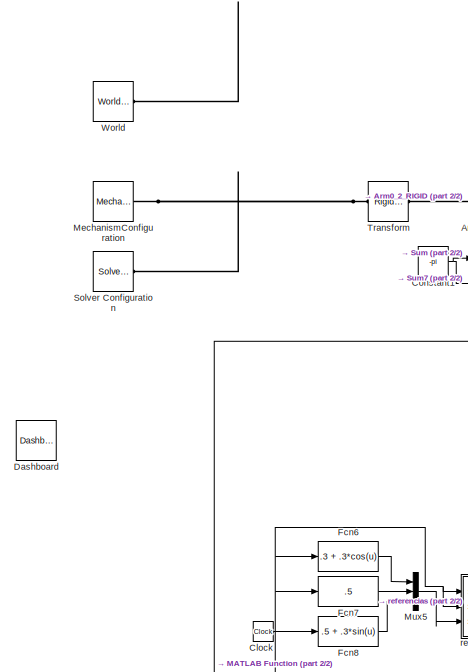
[diagram: root canvas - part 1/2, left side, full height]
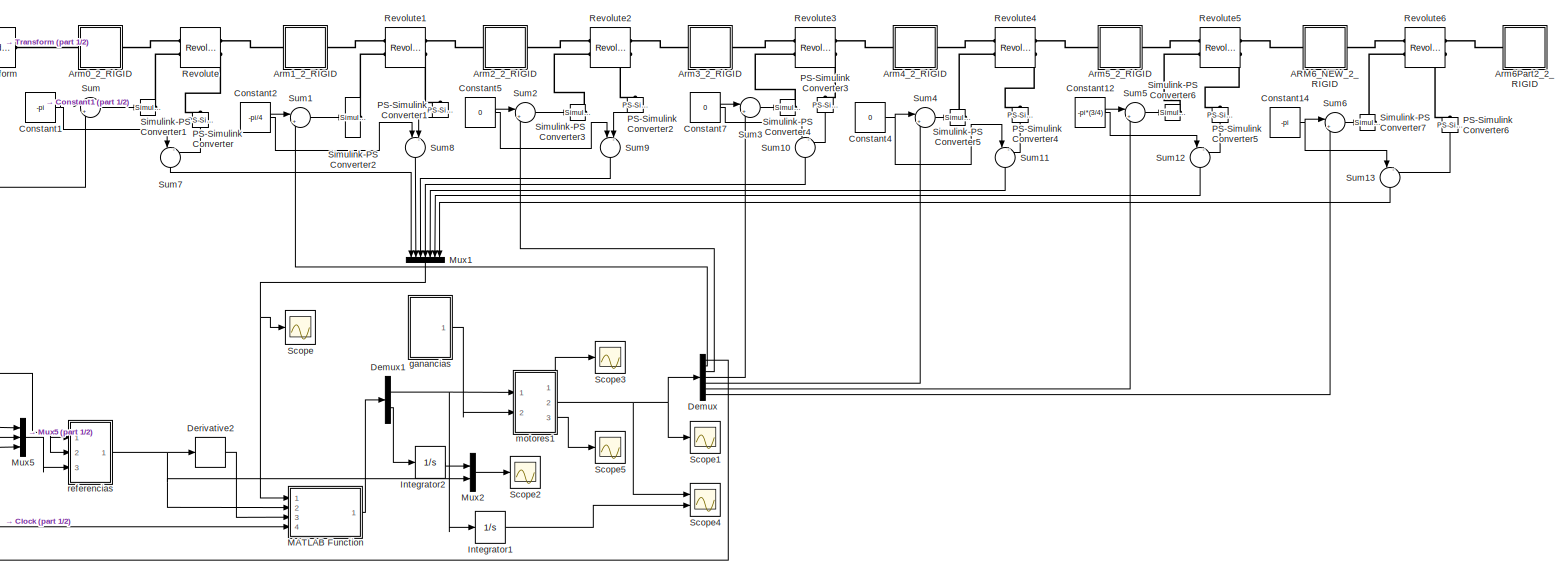
[diagram: root canvas - part 2/2, most of the canvas]
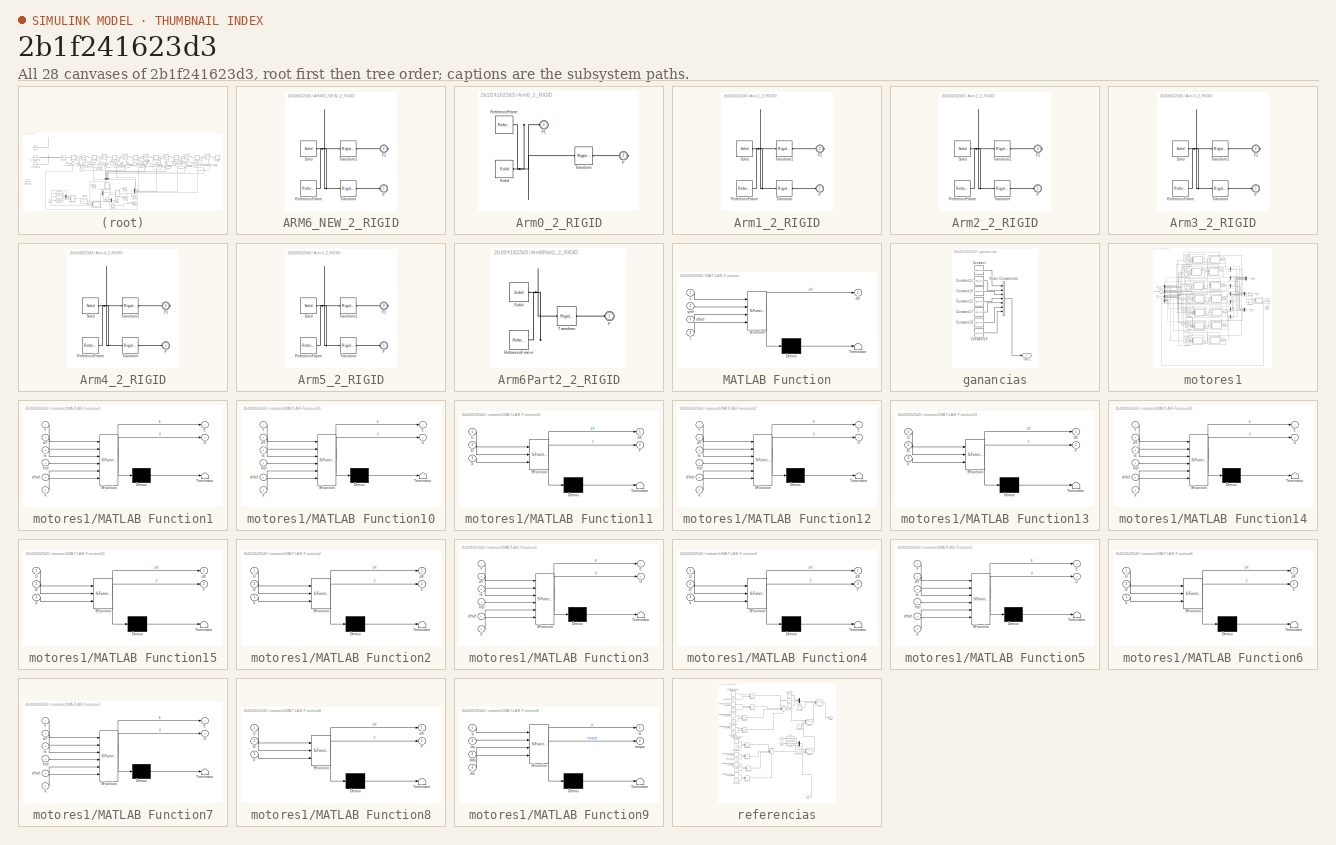
[diagram: thumbnail index - all 28 canvases of the model, root first then tree order]
MODEL slx_2b1f241623d3
KIND model
CONFIG AbsTol = auto
CONFIG EnableMultiTasking = off
CONFIG FixedStep = auto
CONFIG MaxStep = auto
CONFIG MinStep = auto
CONFIG RelTol = 1e-6
CONFIG SampleTimeConstraint = Unconstrained
CONFIG Solver = VariableStepAuto
CONFIG SolverName = VariableStepAuto
CONFIG StartTime = 0.0
CONFIG StopTime = 25
WORKSPACE source: external: MATLAB File  (data not in archive)
BLOCK [SubSystem] ARM6_NEW_2_RIGID
  Ports = [0, 0, 0, 0, 0, 1, 1]
  RequestExecContextInheritance = off
BLOCK [PMIOPort] ARM6_NEW_2_RIGID/F
  Side = Left
BLOCK [PMIOPort] ARM6_NEW_2_RIGID/F1
  Port = 2
  Side = Right
BLOCK [Reference] ARM6_NEW_2_RIGID/ReferenceFrame  REF=sm_lib/Frames and
Transforms/Reference
Frame
  Ports = [0, 0, 0, 0, 0, 0, 1]
  SourceBlock = sm_lib/Frames and\nTransforms/Reference\nFrame
  SourceProductBaseCode = MS
  SourceProductName = Simscape Multibody
  SourceType = Reference\nFrame
BLOCK [Reference] ARM6_NEW_2_RIGID/Solid  REF=sm_lib/Body Elements/Solid
  Ports = [0, 0, 0, 0, 0, 0, 1]
  SourceBlock = sm_lib/Body Elements/Solid
  SourceProductBaseCode = MS
  SourceProductName = Simscape Multibody
  SourceType = Solid
BLOCK [Reference] ARM6_NEW_2_RIGID/Transform  REF=sm_lib/Frames and
Transforms/Rigid
Transform
  Ports = [0, 0, 0, 0, 0, 1, 1]
  SourceBlock = sm_lib/Frames and\nTransforms/Rigid\nTransform
  SourceProductBaseCode = MS
  SourceProductName = Simscape Multibody
  SourceType = Rigid\nTransform
BLOCK [Reference] ARM6_NEW_2_RIGID/Transform1  REF=sm_lib/Frames and
Transforms/Rigid
Transform
  Ports = [0, 0, 0, 0, 0, 1, 1]
  SourceBlock = sm_lib/Frames and\nTransforms/Rigid\nTransform
  SourceProductBaseCode = MS
  SourceProductName = Simscape Multibody
  SourceType = Rigid\nTransform
BLOCK [SubSystem] Arm0_2_RIGID
  Ports = [0, 0, 0, 0, 0, 1, 1]
  RequestExecContextInheritance = off
BLOCK [PMIOPort] Arm0_2_RIGID/F
  Port = 2
  Side = Right
BLOCK [PMIOPort] Arm0_2_RIGID/F1
  Side = Left
BLOCK [Reference] Arm0_2_RIGID/ReferenceFrame  REF=sm_lib/Frames and
Transforms/Reference
Frame
  Ports = [0, 0, 0, 0, 0, 0, 1]
  SourceBlock = sm_lib/Frames and\nTransforms/Reference\nFrame
  SourceProductBaseCode = MS
  SourceProductName = Simscape Multibody
  SourceType = Reference\nFrame
BLOCK [Reference] Arm0_2_RIGID/Solid  REF=sm_lib/Body Elements/Solid
  Ports = [0, 0, 0, 0, 0, 0, 1]
  SourceBlock = sm_lib/Body Elements/Solid
  SourceProductBaseCode = MS
  SourceProductName = Simscape Multibody
  SourceType = Solid
BLOCK [Reference] Arm0_2_RIGID/Transform  REF=sm_lib/Frames and
Transforms/Rigid
Transform
  Ports = [0, 0, 0, 0, 0, 1, 1]
  SourceBlock = sm_lib/Frames and\nTransforms/Rigid\nTransform
  SourceProductBaseCode = MS
  SourceProductName = Simscape Multibody
  SourceType = Rigid\nTransform
BLOCK [SubSystem] Arm1_2_RIGID
  Ports = [0, 0, 0, 0, 0, 1, 1]
  RequestExecContextInheritance = off
BLOCK [PMIOPort] Arm1_2_RIGID/F
  Side = Left
BLOCK [PMIOPort] Arm1_2_RIGID/F1
  Port = 2
  Side = Right
BLOCK [Reference] Arm1_2_RIGID/ReferenceFrame  REF=sm_lib/Frames and
Transforms/Reference
Frame
  Ports = [0, 0, 0, 0, 0, 0, 1]
  SourceBlock = sm_lib/Frames and\nTransforms/Reference\nFrame
  SourceProductBaseCode = MS
  SourceProductName = Simscape Multibody
  SourceType = Reference\nFrame
BLOCK [Reference] Arm1_2_RIGID/Solid  REF=sm_lib/Body Elements/Solid
  Ports = [0, 0, 0, 0, 0, 0, 1]
  SourceBlock = sm_lib/Body Elements/Solid
  SourceProductBaseCode = MS
  SourceProductName = Simscape Multibody
  SourceType = Solid
BLOCK [Reference] Arm1_2_RIGID/Transform  REF=sm_lib/Frames and
Transforms/Rigid
Transform
  Ports = [0, 0, 0, 0, 0, 1, 1]
  SourceBlock = sm_lib/Frames and\nTransforms/Rigid\nTransform
  SourceProductBaseCode = MS
  SourceProductName = Simscape Multibody
  SourceType = Rigid\nTransform
BLOCK [Reference] Arm1_2_RIGID/Transform1  REF=sm_lib/Frames and
Transforms/Rigid
Transform
  Ports = [0, 0, 0, 0, 0, 1, 1]
  SourceBlock = sm_lib/Frames and\nTransforms/Rigid\nTransform
  SourceProductBaseCode = MS
  SourceProductName = Simscape Multibody
  SourceType = Rigid\nTransform
BLOCK [SubSystem] Arm2_2_RIGID
  Ports = [0, 0, 0, 0, 0, 1, 1]
  RequestExecContextInheritance = off
BLOCK [PMIOPort] Arm2_2_RIGID/F
  Side = Left
BLOCK [PMIOPort] Arm2_2_RIGID/F1
  Port = 2
  Side = Right
BLOCK [Reference] Arm2_2_RIGID/ReferenceFrame  REF=sm_lib/Frames and
Transforms/Reference
Frame
  Ports = [0, 0, 0, 0, 0, 0, 1]
  SourceBlock = sm_lib/Frames and\nTransforms/Reference\nFrame
  SourceProductBaseCode = MS
  SourceProductName = Simscape Multibody
  SourceType = Reference\nFrame
BLOCK [Reference] Arm2_2_RIGID/Solid  REF=sm_lib/Body Elements/Solid
  Ports = [0, 0, 0, 0, 0, 0, 1]
  SourceBlock = sm_lib/Body Elements/Solid
  SourceProductBaseCode = MS
  SourceProductName = Simscape Multibody
  SourceType = Solid
BLOCK [Reference] Arm2_2_RIGID/Transform  REF=sm_lib/Frames and
Transforms/Rigid
Transform
  Ports = [0, 0, 0, 0, 0, 1, 1]
  SourceBlock = sm_lib/Frames and\nTransforms/Rigid\nTransform
  SourceProductBaseCode = MS
  SourceProductName = Simscape Multibody
  SourceType = Rigid\nTransform
BLOCK [Reference] Arm2_2_RIGID/Transform1  REF=sm_lib/Frames and
Transforms/Rigid
Transform
  Ports = [0, 0, 0, 0, 0, 1, 1]
  SourceBlock = sm_lib/Frames and\nTransforms/Rigid\nTransform
  SourceProductBaseCode = MS
  SourceProductName = Simscape Multibody
  SourceType = Rigid\nTransform
BLOCK [SubSystem] Arm3_2_RIGID
  Ports = [0, 0, 0, 0, 0, 1, 1]
  RequestExecContextInheritance = off
BLOCK [PMIOPort] Arm3_2_RIGID/F
  Side = Left
BLOCK [PMIOPort] Arm3_2_RIGID/F1
  Port = 2
  Side = Right
BLOCK [Reference] Arm3_2_RIGID/ReferenceFrame  REF=sm_lib/Frames and
Transforms/Reference
Frame
  Ports = [0, 0, 0, 0, 0, 0, 1]
  SourceBlock = sm_lib/Frames and\nTransforms/Reference\nFrame
  SourceProductBaseCode = MS
  SourceProductName = Simscape Multibody
  SourceType = Reference\nFrame
BLOCK [Reference] Arm3_2_RIGID/Solid  REF=sm_lib/Body Elements/Solid
  Ports = [0, 0, 0, 0, 0, 0, 1]
  SourceBlock = sm_lib/Body Elements/Solid
  SourceProductBaseCode = MS
  SourceProductName = Simscape Multibody
  SourceType = Solid
BLOCK [Reference] Arm3_2_RIGID/Transform  REF=sm_lib/Frames and
Transforms/Rigid
Transform
  Ports = [0, 0, 0, 0, 0, 1, 1]
  SourceBlock = sm_lib/Frames and\nTransforms/Rigid\nTransform
  SourceProductBaseCode = MS
  SourceProductName = Simscape Multibody
  SourceType = Rigid\nTransform
BLOCK [Reference] Arm3_2_RIGID/Transform1  REF=sm_lib/Frames and
Transforms/Rigid
Transform
  Ports = [0, 0, 0, 0, 0, 1, 1]
  SourceBlock = sm_lib/Frames and\nTransforms/Rigid\nTransform
  SourceProductBaseCode = MS
  SourceProductName = Simscape Multibody
  SourceType = Rigid\nTransform
BLOCK [SubSystem] Arm4_2_RIGID
  Ports = [0, 0, 0, 0, 0, 1, 1]
  RequestExecContextInheritance = off
BLOCK [PMIOPort] Arm4_2_RIGID/F
  Side = Left
BLOCK [PMIOPort] Arm4_2_RIGID/F1
  Port = 2
  Side = Right
BLOCK [Reference] Arm4_2_RIGID/ReferenceFrame  REF=sm_lib/Frames and
Transforms/Reference
Frame
  Ports = [0, 0, 0, 0, 0, 0, 1]
  SourceBlock = sm_lib/Frames and\nTransforms/Reference\nFrame
  SourceProductBaseCode = MS
  SourceProductName = Simscape Multibody
  SourceType = Reference\nFrame
BLOCK [Reference] Arm4_2_RIGID/Solid  REF=sm_lib/Body Elements/Solid
  Ports = [0, 0, 0, 0, 0, 0, 1]
  SourceBlock = sm_lib/Body Elements/Solid
  SourceProductBaseCode = MS
  SourceProductName = Simscape Multibody
  SourceType = Solid
BLOCK [Reference] Arm4_2_RIGID/Transform  REF=sm_lib/Frames and
Transforms/Rigid
Transform
  Ports = [0, 0, 0, 0, 0, 1, 1]
  SourceBlock = sm_lib/Frames and\nTransforms/Rigid\nTransform
  SourceProductBaseCode = MS
  SourceProductName = Simscape Multibody
  SourceType = Rigid\nTransform
BLOCK [Reference] Arm4_2_RIGID/Transform1  REF=sm_lib/Frames and
Transforms/Rigid
Transform
  Ports = [0, 0, 0, 0, 0, 1, 1]
  SourceBlock = sm_lib/Frames and\nTransforms/Rigid\nTransform
  SourceProductBaseCode = MS
  SourceProductName = Simscape Multibody
  SourceType = Rigid\nTransform
BLOCK [SubSystem] Arm5_2_RIGID
  Ports = [0, 0, 0, 0, 0, 1, 1]
  RequestExecContextInheritance = off
BLOCK [PMIOPort] Arm5_2_RIGID/F
  Side = Left
BLOCK [PMIOPort] Arm5_2_RIGID/F1
  Port = 2
  Side = Right
BLOCK [Reference] Arm5_2_RIGID/ReferenceFrame  REF=sm_lib/Frames and
Transforms/Reference
Frame
  Ports = [0, 0, 0, 0, 0, 0, 1]
  SourceBlock = sm_lib/Frames and\nTransforms/Reference\nFrame
  SourceProductBaseCode = MS
  SourceProductName = Simscape Multibody
  SourceType = Reference\nFrame
BLOCK [Reference] Arm5_2_RIGID/Solid  REF=sm_lib/Body Elements/Solid
  Ports = [0, 0, 0, 0, 0, 0, 1]
  SourceBlock = sm_lib/Body Elements/Solid
  SourceProductBaseCode = MS
  SourceProductName = Simscape Multibody
  SourceType = Solid
BLOCK [Reference] Arm5_2_RIGID/Transform  REF=sm_lib/Frames and
Transforms/Rigid
Transform
  Ports = [0, 0, 0, 0, 0, 1, 1]
  SourceBlock = sm_lib/Frames and\nTransforms/Rigid\nTransform
  SourceProductBaseCode = MS
  SourceProductName = Simscape Multibody
  SourceType = Rigid\nTransform
BLOCK [Reference] Arm5_2_RIGID/Transform1  REF=sm_lib/Frames and
Transforms/Rigid
Transform
  Ports = [0, 0, 0, 0, 0, 1, 1]
  SourceBlock = sm_lib/Frames and\nTransforms/Rigid\nTransform
  SourceProductBaseCode = MS
  SourceProductName = Simscape Multibody
  SourceType = Rigid\nTransform
BLOCK [SubSystem] Arm6Part2_2_RIGID
  Ports = [0, 0, 0, 0, 0, 1]
  RequestExecContextInheritance = off
BLOCK [PMIOPort] Arm6Part2_2_RIGID/F
  Side = Left
BLOCK [Reference] Arm6Part2_2_RIGID/ReferenceFrame  REF=sm_lib/Frames and
Transforms/Reference
Frame
  Ports = [0, 0, 0, 0, 0, 0, 1]
  SourceBlock = sm_lib/Frames and\nTransforms/Reference\nFrame
  SourceProductBaseCode = MS
  SourceProductName = Simscape Multibody
  SourceType = Reference\nFrame
BLOCK [Reference] Arm6Part2_2_RIGID/Solid  REF=sm_lib/Body Elements/Solid
  Ports = [0, 0, 0, 0, 0, 0, 1]
  SourceBlock = sm_lib/Body Elements/Solid
  SourceProductBaseCode = MS
  SourceProductName = Simscape Multibody
  SourceType = Solid
BLOCK [Reference] Arm6Part2_2_RIGID/Transform  REF=sm_lib/Frames and
Transforms/Rigid
Transform
  Ports = [0, 0, 0, 0, 0, 1, 1]
  SourceBlock = sm_lib/Frames and\nTransforms/Rigid\nTransform
  SourceProductBaseCode = MS
  SourceProductName = Simscape Multibody
  SourceType = Rigid\nTransform
BLOCK [Clock] Clock
  Decimation = 10000
BLOCK [Constant] Constant1
  Value = -pi
BLOCK [Constant] Constant12
  Value = -pi*(3/4)
BLOCK [Constant] Constant14
  Value = -pi
BLOCK [Constant] Constant2
  Value = -pi/4
BLOCK [Constant] Constant4
  Value = 0
BLOCK [Constant] Constant5
  Value = 0
BLOCK [Constant] Constant7
  Value = 0
BLOCK [Reference] Dashboard  REF=simulink/Dashboard
  Ports = []
  SourceBlock = simulink/Dashboard
  SourceProductBaseCode = SL
  SourceProductName = Simulink
BLOCK [Demux] Demux
  DisplayOption = bar
  Outputs = 7
  Ports = [1, 7]
BLOCK [Demux] Demux1
  DisplayOption = bar
  Outputs = [7 3]
  Ports = [1, 2]
BLOCK [Derivative] Derivative2
BLOCK [Fcn] Fcn6
  Expr = .3 + .3*cos(u)
BLOCK [Fcn] Fcn7
  Expr = .5
BLOCK [Fcn] Fcn8
  Expr = .5 + .3*sin(u)
BLOCK [Integrator] Integrator1
  InitialCondition = [0 0 0 0 0 0 0]
  LowerSaturationLimit = -4
  Ports = [1, 1]
  UpperSaturationLimit = 4
BLOCK [Integrator] Integrator2
  InitialCondition = [.148 0 1.2385]
  LowerSaturationLimit = -4
  Ports = [1, 1]
  UpperSaturationLimit = 4
BLOCK [SubSystem] MATLAB Function
  ErrorFcn = Stateflow.Translate.translate
  PermitHierarchicalResolution = ExplicitOnly
  Ports = [4, 1]
  RequestExecContextInheritance = off
  SFBlockType = MATLAB Function
  TreatAsAtomicUnit = on
BLOCK [Demux] MATLAB Function/ Demux 
  Outputs = 1
  Ports = [1, 1]
BLOCK [S-Function] MATLAB Function/ SFunction 
  EnableBusSupport = on
  FunctionName = sf_sfun
  PortCounts = [4 2]
  Ports = [4, 2]
  SFcnIsStateOwnerBlock = off
  SFunctionDeploymentMode = off
  Tag = Stateflow S-Function robot_model_with_torque 2
BLOCK [Terminator] MATLAB Function/ Terminator 
BLOCK [Outport] MATLAB Function/dX
  IconDisplay = Port number
BLOCK [Inport] MATLAB Function/dYref
  IconDisplay = Port number
  Port = 3
BLOCK [Inport] MATLAB Function/t
  IconDisplay = Port number
  Port = 4
BLOCK [Inport] MATLAB Function/x
  IconDisplay = Port number
BLOCK [Inport] MATLAB Function/yref
  IconDisplay = Port number
  Port = 2
BLOCK [Reference] MechanismConfiguration  REF=sm_lib/Utilities/Mechanism
Configuration
  Ports = [0, 0, 0, 0, 0, 0, 1]
  SourceBlock = sm_lib/Utilities/Mechanism\nConfiguration
  SourceProductBaseCode = MS
  SourceProductName = Simscape Multibody
  SourceType = Mechanism\nConfiguration
BLOCK [Mux] Mux1
  DisplayOption = bar
  Inputs = 7
  Ports = [7, 1]
BLOCK [Mux] Mux2
  DisplayOption = bar
  Inputs = 2
  Ports = [2, 1]
BLOCK [Mux] Mux5
  DisplayOption = bar
  Inputs = 3
  Ports = [3, 1]
BLOCK [Reference] PS-Simulink Converter  REF=nesl_utility/PS-Simulink
Converter
  Ports = [0, 1, 0, 0, 0, 1]
  SourceBlock = nesl_utility/PS-Simulink\nConverter
  SourceProductBaseCode = SS
  SourceProductName = Simscape
  SourceType = PS-Simulink\nConverter
BLOCK [Reference] PS-Simulink Converter1  REF=nesl_utility/PS-Simulink
Converter
  Ports = [0, 1, 0, 0, 0, 1]
  SourceBlock = nesl_utility/PS-Simulink\nConverter
  SourceProductBaseCode = SS
  SourceProductName = Simscape
  SourceType = PS-Simulink\nConverter
BLOCK [Reference] PS-Simulink Converter2  REF=nesl_utility/PS-Simulink
Converter
  Ports = [0, 1, 0, 0, 0, 1]
  SourceBlock = nesl_utility/PS-Simulink\nConverter
  SourceProductBaseCode = SS
  SourceProductName = Simscape
  SourceType = PS-Simulink\nConverter
BLOCK [Reference] PS-Simulink Converter3  REF=nesl_utility/PS-Simulink
Converter
  Ports = [0, 1, 0, 0, 0, 1]
  SourceBlock = nesl_utility/PS-Simulink\nConverter
  SourceProductBaseCode = SS
  SourceProductName = Simscape
  SourceType = PS-Simulink\nConverter
BLOCK [Reference] PS-Simulink Converter4  REF=nesl_utility/PS-Simulink
Converter
  Ports = [0, 1, 0, 0, 0, 1]
  SourceBlock = nesl_utility/PS-Simulink\nConverter
  SourceProductBaseCode = SS
  SourceProductName = Simscape
  SourceType = PS-Simulink\nConverter
BLOCK [Reference] PS-Simulink Converter5  REF=nesl_utility/PS-Simulink
Converter
  Ports = [0, 1, 0, 0, 0, 1]
  SourceBlock = nesl_utility/PS-Simulink\nConverter
  SourceProductBaseCode = SS
  SourceProductName = Simscape
  SourceType = PS-Simulink\nConverter
BLOCK [Reference] PS-Simulink Converter6  REF=nesl_utility/PS-Simulink
Converter
  Ports = [0, 1, 0, 0, 0, 1]
  SourceBlock = nesl_utility/PS-Simulink\nConverter
  SourceProductBaseCode = SS
  SourceProductName = Simscape
  SourceType = PS-Simulink\nConverter
BLOCK [Reference] Revolute  REF=sm_lib/Joints/Revolute Joint
  Ports = [0, 0, 0, 0, 0, 2, 2]
  SourceBlock = sm_lib/Joints/Revolute Joint
  SourceProductBaseCode = MS
  SourceProductName = Simscape Multibody
  SourceType = Revolute Joint
BLOCK [Reference] Revolute1  REF=sm_lib/Joints/Revolute Joint
  Ports = [0, 0, 0, 0, 0, 2, 2]
  SourceBlock = sm_lib/Joints/Revolute Joint
  SourceProductBaseCode = MS
  SourceProductName = Simscape Multibody
  SourceType = Revolute Joint
BLOCK [Reference] Revolute2  REF=sm_lib/Joints/Revolute Joint
  Ports = [0, 0, 0, 0, 0, 2, 2]
  SourceBlock = sm_lib/Joints/Revolute Joint
  SourceProductBaseCode = MS
  SourceProductName = Simscape Multibody
  SourceType = Revolute Joint
BLOCK [Reference] Revolute3  REF=sm_lib/Joints/Revolute Joint
  Ports = [0, 0, 0, 0, 0, 2, 2]
  SourceBlock = sm_lib/Joints/Revolute Joint
  SourceProductBaseCode = MS
  SourceProductName = Simscape Multibody
  SourceType = Revolute Joint
BLOCK [Reference] Revolute4  REF=sm_lib/Joints/Revolute Joint
  Ports = [0, 0, 0, 0, 0, 2, 2]
  SourceBlock = sm_lib/Joints/Revolute Joint
  SourceProductBaseCode = MS
  SourceProductName = Simscape Multibody
  SourceType = Revolute Joint
BLOCK [Reference] Revolute5  REF=sm_lib/Joints/Revolute Joint
  Ports = [0, 0, 0, 0, 0, 2, 2]
  SourceBlock = sm_lib/Joints/Revolute Joint
  SourceProductBaseCode = MS
  SourceProductName = Simscape Multibody
  SourceType = Revolute Joint
BLOCK [Reference] Revolute6  REF=sm_lib/Joints/Revolute Joint
  Ports = [0, 0, 0, 0, 0, 2, 2]
  SourceBlock = sm_lib/Joints/Revolute Joint
  SourceProductBaseCode = MS
  SourceProductName = Simscape Multibody
  SourceType = Revolute Joint
BLOCK [Scope] Scope
  Floating = off
  NumInputPorts = 1
  Ports = [1]
  ScopeSpecificationString = Simulink.scopes.TimeScopeBlockCfg('CurrentConfiguration', extmgr.ConfigurationSet(extmgr.Configuration('Core','General UI',true),extmgr.Configuration('Core','Source UI',true),extmgr.Configuration('Sources','WiredSimulink',true,'DataLogging',true,'DataLoggingVariableName','DATA','DataLoggingSaveFormat','Array'),extmgr.Configuration('Visuals','Time Domain',true,'SerializedDisplays',{struct('MinYLimR...<+1758ch>
BLOCK [Scope] Scope1
  Floating = off
  NumInputPorts = 1
  Ports = [1]
  ScopeSpecificationString = Simulink.scopes.TimeScopeBlockCfg('CurrentConfiguration', extmgr.ConfigurationSet(extmgr.Configuration('Core','General UI',true),extmgr.Configuration('Core','Source UI',true),extmgr.Configuration('Sources','WiredSimulink',true,'DataLoggingVariableName','DATA4','DataLogging',true,'DataLoggingSaveFormat','Array'),extmgr.Configuration('Visuals','Time Domain',true,'SerializedDisplays',{struct('MinYLim...<+1811ch>
BLOCK [Scope] Scope2
  Floating = off
  NumInputPorts = 1
  Ports = [1]
  ScopeSpecificationString = Simulink.scopes.TimeScopeBlockCfg('CurrentConfiguration', extmgr.ConfigurationSet(extmgr.Configuration('Core','General UI',true),extmgr.Configuration('Core','Source UI',true),extmgr.Configuration('Sources','WiredSimulink',true,'DataLoggingVariableName','DATA3','DataLogging',true,'DataLoggingSaveFormat','Array'),extmgr.Configuration('Visuals','Time Domain',true,'SerializedDisplays',{struct('MinYLim...<+1798ch>
BLOCK [Scope] Scope3
  Floating = off
  NumInputPorts = 1
  Ports = [1]
  ScopeSpecificationString = Simulink.scopes.TimeScopeBlockCfg('CurrentConfiguration', extmgr.ConfigurationSet(extmgr.Configuration('Core','General UI',true),extmgr.Configuration('Core','Source UI',true),extmgr.Configuration('Sources','WiredSimulink',true,'DataLoggingVariableName','DATA1','DataLogging',true,'DataLoggingSaveFormat','Array'),extmgr.Configuration('Visuals','Time Domain',true,'SerializedDisplays',{struct('MinYLim...<+1706ch>
BLOCK [Scope] Scope4
  Floating = off
  NumInputPorts = 2
  Ports = [2]
  ScopeSpecificationString = Simulink.scopes.TimeScopeBlockCfg('CurrentConfiguration', extmgr.ConfigurationSet(extmgr.Configuration('Core','General UI',true),extmgr.Configuration('Core','Source UI',true),extmgr.Configuration('Sources','WiredSimulink',true,'DataLoggingVariableName','ScopeData2','DataLoggingSaveFormat','Array'),extmgr.Configuration('Visuals','Time Domain',true,'SerializedDisplays',{struct('MinYLimReal','-1.8924...<+2000ch>
BLOCK [Scope] Scope5
  Floating = off
  NumInputPorts = 1
  Ports = [1]
  ScopeSpecificationString = Simulink.scopes.TimeScopeBlockCfg('CurrentConfiguration', extmgr.ConfigurationSet(extmgr.Configuration('Core','General UI',true),extmgr.Configuration('Core','Source UI',true),extmgr.Configuration('Sources','WiredSimulink',true,'DataLoggingVariableName','DATA2','DataLogging',true,'DataLoggingSaveFormat','Array'),extmgr.Configuration('Visuals','Time Domain',true,'SerializedDisplays',{struct('MinYLim...<+1712ch>
BLOCK [Reference] Simulink-PS Converter1  REF=nesl_utility/Simulink-PS
Converter
  Ports = [1, 0, 0, 0, 0, 0, 1]
  SourceBlock = nesl_utility/Simulink-PS\nConverter
  SourceProductBaseCode = SS
  SourceProductName = Simscape
  SourceType = Simulink-PS\nConverter
BLOCK [Reference] Simulink-PS Converter2  REF=nesl_utility/Simulink-PS
Converter
  Ports = [1, 0, 0, 0, 0, 0, 1]
  SourceBlock = nesl_utility/Simulink-PS\nConverter
  SourceProductBaseCode = SS
  SourceProductName = Simscape
  SourceType = Simulink-PS\nConverter
BLOCK [Reference] Simulink-PS Converter3  REF=nesl_utility/Simulink-PS
Converter
  Ports = [1, 0, 0, 0, 0, 0, 1]
  SourceBlock = nesl_utility/Simulink-PS\nConverter
  SourceProductBaseCode = SS
  SourceProductName = Simscape
  SourceType = Simulink-PS\nConverter
BLOCK [Reference] Simulink-PS Converter4  REF=nesl_utility/Simulink-PS
Converter
  Ports = [1, 0, 0, 0, 0, 0, 1]
  SourceBlock = nesl_utility/Simulink-PS\nConverter
  SourceProductBaseCode = SS
  SourceProductName = Simscape
  SourceType = Simulink-PS\nConverter
BLOCK [Reference] Simulink-PS Converter5  REF=nesl_utility/Simulink-PS
Converter
  Ports = [1, 0, 0, 0, 0, 0, 1]
  SourceBlock = nesl_utility/Simulink-PS\nConverter
  SourceProductBaseCode = SS
  SourceProductName = Simscape
  SourceType = Simulink-PS\nConverter
BLOCK [Reference] Simulink-PS Converter6  REF=nesl_utility/Simulink-PS
Converter
  Ports = [1, 0, 0, 0, 0, 0, 1]
  SourceBlock = nesl_utility/Simulink-PS\nConverter
  SourceProductBaseCode = SS
  SourceProductName = Simscape
  SourceType = Simulink-PS\nConverter
BLOCK [Reference] Simulink-PS Converter7  REF=nesl_utility/Simulink-PS
Converter
  Ports = [1, 0, 0, 0, 0, 0, 1]
  SourceBlock = nesl_utility/Simulink-PS\nConverter
  SourceProductBaseCode = SS
  SourceProductName = Simscape
  SourceType = Simulink-PS\nConverter
BLOCK [Reference] Solver Configuration  REF=nesl_utility/Solver
Configuration
  Ports = [0, 0, 0, 0, 0, 0, 1]
  SourceBlock = nesl_utility/Solver\nConfiguration
  SourceProductBaseCode = SS
  SourceProductName = Simscape
  SourceType = Solver\nConfiguration
BLOCK [Sum] Sum
  IconShape = round
  InputSameDT = off
  Inputs = |++
  OutDataTypeStr = Inherit: Inherit via internal rule
  Ports = [2, 1]
  SaturateOnIntegerOverflow = off
BLOCK [Sum] Sum1
  IconShape = round
  InputSameDT = off
  Inputs = |++
  OutDataTypeStr = Inherit: Inherit via internal rule
  Ports = [2, 1]
  SaturateOnIntegerOverflow = off
BLOCK [Sum] Sum10
  IconShape = round
  InputSameDT = off
  Inputs = |-+
  OutDataTypeStr = Inherit: Inherit via internal rule
  Ports = [2, 1]
  SaturateOnIntegerOverflow = off
BLOCK [Sum] Sum11
  IconShape = round
  InputSameDT = off
  Inputs = |-+
  OutDataTypeStr = Inherit: Inherit via internal rule
  Ports = [2, 1]
  SaturateOnIntegerOverflow = off
BLOCK [Sum] Sum12
  IconShape = round
  InputSameDT = off
  Inputs = |-+
  OutDataTypeStr = Inherit: Inherit via internal rule
  Ports = [2, 1]
  SaturateOnIntegerOverflow = off
BLOCK [Sum] Sum13
  IconShape = round
  InputSameDT = off
  Inputs = |-+
  OutDataTypeStr = Inherit: Inherit via internal rule
  Ports = [2, 1]
  SaturateOnIntegerOverflow = off
BLOCK [Sum] Sum2
  IconShape = round
  InputSameDT = off
  Inputs = |++
  OutDataTypeStr = Inherit: Inherit via internal rule
  Ports = [2, 1]
  SaturateOnIntegerOverflow = off
BLOCK [Sum] Sum3
  IconShape = round
  InputSameDT = off
  Inputs = |++
  OutDataTypeStr = Inherit: Inherit via internal rule
  Ports = [2, 1]
  SaturateOnIntegerOverflow = off
BLOCK [Sum] Sum4
  IconShape = round
  InputSameDT = off
  Inputs = |++
  OutDataTypeStr = Inherit: Inherit via internal rule
  Ports = [2, 1]
  SaturateOnIntegerOverflow = off
BLOCK [Sum] Sum5
  IconShape = round
  InputSameDT = off
  Inputs = |++
  OutDataTypeStr = Inherit: Inherit via internal rule
  Ports = [2, 1]
  SaturateOnIntegerOverflow = off
BLOCK [Sum] Sum6
  IconShape = round
  InputSameDT = off
  Inputs = |++
  OutDataTypeStr = Inherit: Inherit via internal rule
  Ports = [2, 1]
  SaturateOnIntegerOverflow = off
BLOCK [Sum] Sum7
  IconShape = round
  InputSameDT = off
  Inputs = |-+
  OutDataTypeStr = Inherit: Inherit via internal rule
  Ports = [2, 1]
  SaturateOnIntegerOverflow = off
BLOCK [Sum] Sum8
  IconShape = round
  InputSameDT = off
  Inputs = |-+
  OutDataTypeStr = Inherit: Inherit via internal rule
  Ports = [2, 1]
  SaturateOnIntegerOverflow = off
BLOCK [Sum] Sum9
  IconShape = round
  InputSameDT = off
  Inputs = |-+
  OutDataTypeStr = Inherit: Inherit via internal rule
  Ports = [2, 1]
  SaturateOnIntegerOverflow = off
BLOCK [Reference] Transform  REF=sm_lib/Frames and
Transforms/Rigid
Transform
  Ports = [0, 0, 0, 0, 0, 1, 1]
  SourceBlock = sm_lib/Frames and\nTransforms/Rigid\nTransform
  SourceProductBaseCode = MS
  SourceProductName = Simscape Multibody
  SourceType = Rigid\nTransform
BLOCK [Reference] World  REF=sm_lib/Frames and
Transforms/World Frame
  Ports = [0, 0, 0, 0, 0, 0, 1]
  SourceBlock = sm_lib/Frames and\nTransforms/World Frame
  SourceProductBaseCode = MS
  SourceProductName = Simscape Multibody
  SourceType = World Frame
BLOCK [SubSystem] ganancias
  Ports = [0, 1]
  RequestExecContextInheritance = off
BLOCK [Constant] ganancias/Constant
  Value = [1e-5 0 0]
BLOCK [Constant] ganancias/Constant10
  Value = [1e-5 0 0]
BLOCK [Constant] ganancias/Constant11
  Value = [1e-5 0 0]
BLOCK [Constant] ganancias/Constant15
  Value = [1e-5 0 0]
BLOCK [Constant] ganancias/Constant17
  Value = [1e-5 0 0]
BLOCK [Constant] ganancias/Constant18
  Value = [1e-5 0 0]
BLOCK [Constant] ganancias/Constant19
  Value = [1e-5 0 0]
BLOCK [Outport] ganancias/Out1
  IconDisplay = Port number
BLOCK [Concatenate] ganancias/Vector Concatenate
  NumInputs = 7
  Ports = [7, 1]
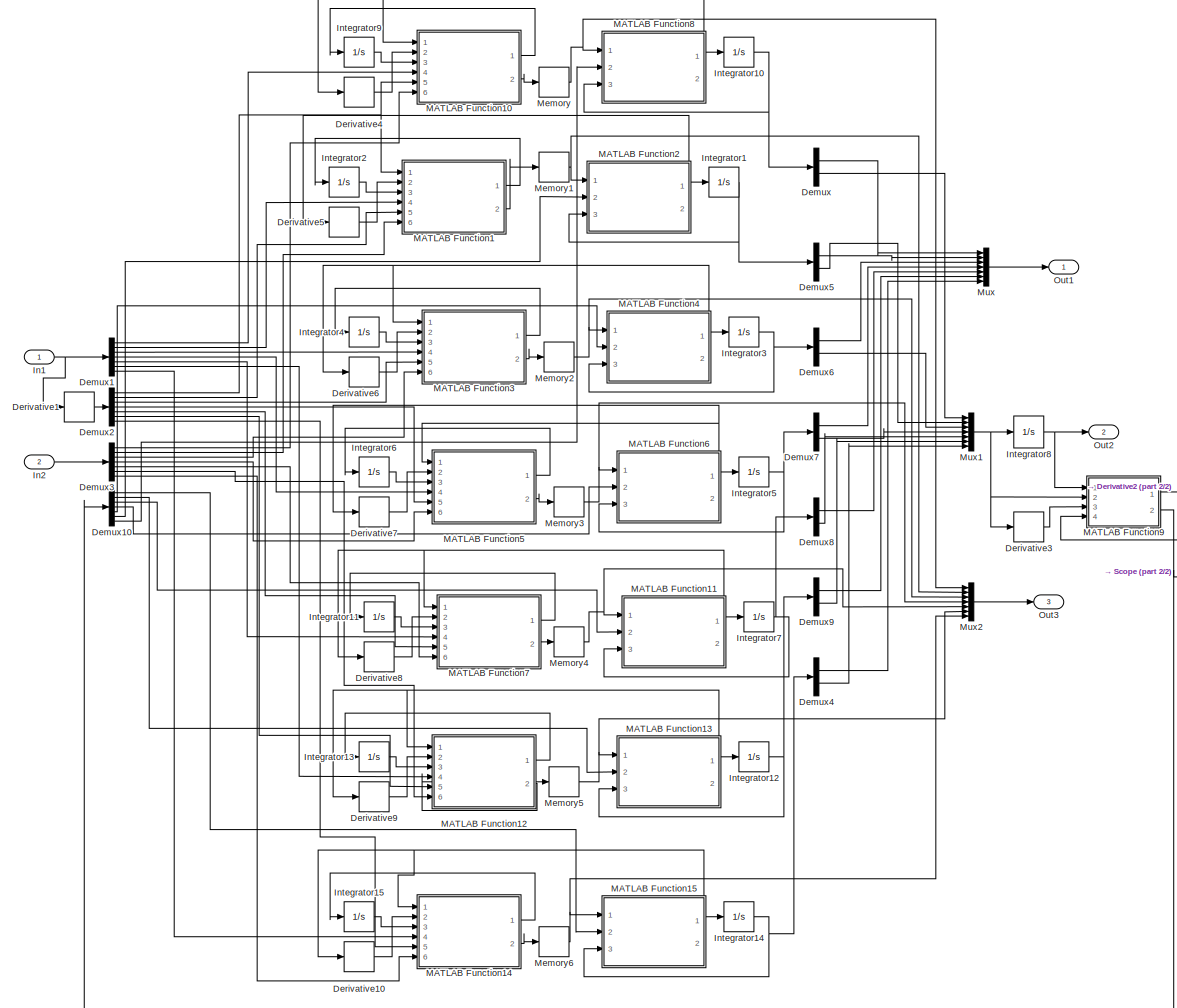
[diagram: motores1 - part 1/2, most of the canvas]
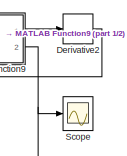
[diagram: motores1 - part 2/2, middle right region]
BLOCK [SubSystem] motores1
  InitFcn = init_robot
  Ports = [2, 3]
  RequestExecContextInheritance = off
BLOCK [Demux] motores1/Demux
  DisplayOption = bar
  Outputs = 2
  Ports = [1, 2]
BLOCK [Demux] motores1/Demux1
  DisplayOption = bar
  Outputs = 7
  Ports = [1, 7]
BLOCK [Demux] motores1/Demux10
  DisplayOption = bar
  Outputs = 7
  Ports = [1, 7]
BLOCK [Demux] motores1/Demux2
  DisplayOption = bar
  Outputs = 7
  Ports = [1, 7]
BLOCK [Demux] motores1/Demux3
  DisplayOption = bar
  Outputs = [3 3 3 3 3 3 3]
  Ports = [1, 7]
BLOCK [Demux] motores1/Demux4
  DisplayOption = bar
  Outputs = 2
  Ports = [1, 2]
BLOCK [Demux] motores1/Demux5
  DisplayOption = bar
  Outputs = 2
  Ports = [1, 2]
BLOCK [Demux] motores1/Demux6
  DisplayOption = bar
  Outputs = 2
  Ports = [1, 2]
BLOCK [Demux] motores1/Demux7
  DisplayOption = bar
  Outputs = 2
  Ports = [1, 2]
BLOCK [Demux] motores1/Demux8
  DisplayOption = bar
  Outputs = 2
  Ports = [1, 2]
BLOCK [Demux] motores1/Demux9
  DisplayOption = bar
  Outputs = 2
  Ports = [1, 2]
BLOCK [Derivative] motores1/Derivative1
BLOCK [Derivative] motores1/Derivative10
BLOCK [Derivative] motores1/Derivative2
BLOCK [Derivative] motores1/Derivative3
BLOCK [Derivative] motores1/Derivative4
BLOCK [Derivative] motores1/Derivative5
BLOCK [Derivative] motores1/Derivative6
BLOCK [Derivative] motores1/Derivative7
BLOCK [Derivative] motores1/Derivative8
BLOCK [Derivative] motores1/Derivative9
BLOCK [Inport] motores1/In1
  IconDisplay = Port number
BLOCK [Inport] motores1/In2
  IconDisplay = Port number
  Port = 2
BLOCK [Integrator] motores1/Integrator1
  InitialCondition = [0 0]
  Ports = [1, 1]
BLOCK [Integrator] motores1/Integrator10
  InitialCondition = [0 0]
  Ports = [1, 1]
BLOCK [Integrator] motores1/Integrator11
  Ports = [1, 1]
BLOCK [Integrator] motores1/Integrator12
  InitialCondition = [0 0]
  Ports = [1, 1]
BLOCK [Integrator] motores1/Integrator13
  Ports = [1, 1]
BLOCK [Integrator] motores1/Integrator14
  InitialCondition = [0 0]
  Ports = [1, 1]
BLOCK [Integrator] motores1/Integrator15
  Ports = [1, 1]
BLOCK [Integrator] motores1/Integrator2
  Ports = [1, 1]
BLOCK [Integrator] motores1/Integrator3
  InitialCondition = [0 0]
  Ports = [1, 1]
BLOCK [Integrator] motores1/Integrator4
  Ports = [1, 1]
BLOCK [Integrator] motores1/Integrator5
  InitialCondition = [0 0]
  Ports = [1, 1]
BLOCK [Integrator] motores1/Integrator6
  Ports = [1, 1]
BLOCK [Integrator] motores1/Integrator7
  InitialCondition = [0 0]
  Ports = [1, 1]
BLOCK [Integrator] motores1/Integrator8
  InitialCondition = [0 0 0 0 0 0 0]
  LowerSaturationLimit = -4
  Ports = [1, 1]
  UpperSaturationLimit = 4
BLOCK [Integrator] motores1/Integrator9
  Ports = [1, 1]
BLOCK [SubSystem] motores1/MATLAB Function1
  ErrorFcn = Stateflow.Translate.translate
  PermitHierarchicalResolution = ExplicitOnly
  Ports = [6, 2]
  RequestExecContextInheritance = off
  SFBlockType = MATLAB Function
  TreatAsAtomicUnit = on
BLOCK [Demux] motores1/MATLAB Function1/ Demux 
  Outputs = 1
  Ports = [1, 1]
BLOCK [S-Function] motores1/MATLAB Function1/ SFunction 
  EnableBusSupport = on
  FunctionName = sf_sfun
  PortCounts = [6 3]
  Ports = [6, 3]
  SFcnIsStateOwnerBlock = off
  SFunctionDeploymentMode = off
  Tag = Stateflow S-Function robot_model_with_torque 9
BLOCK [Terminator] motores1/MATLAB Function1/ Terminator 
BLOCK [Outport] motores1/MATLAB Function1/E
  IconDisplay = Port number
BLOCK [Outport] motores1/MATLAB Function1/U
  IconDisplay = Port number
  Port = 2
BLOCK [Inport] motores1/MATLAB Function1/Y
  IconDisplay = Port number
BLOCK [Inport] motores1/MATLAB Function1/Yref
  IconDisplay = Port number
  Port = 4
BLOCK [Inport] motores1/MATLAB Function1/dY
  IconDisplay = Port number
  Port = 2
BLOCK [Inport] motores1/MATLAB Function1/dYref
  IconDisplay = Port number
  Port = 5
BLOCK [Inport] motores1/MATLAB Function1/iE
  IconDisplay = Port number
  Port = 3
BLOCK [Inport] motores1/MATLAB Function1/k
  IconDisplay = Port number
  Port = 6
BLOCK [SubSystem] motores1/MATLAB Function10
  ErrorFcn = Stateflow.Translate.translate
  PermitHierarchicalResolution = ExplicitOnly
  Ports = [6, 2]
  RequestExecContextInheritance = off
  SFBlockType = MATLAB Function
  TreatAsAtomicUnit = on
BLOCK [Demux] motores1/MATLAB Function10/ Demux 
  Outputs = 1
  Ports = [1, 1]
BLOCK [S-Function] motores1/MATLAB Function10/ SFunction 
  EnableBusSupport = on
  FunctionName = sf_sfun
  PortCounts = [6 3]
  Ports = [6, 3]
  SFcnIsStateOwnerBlock = off
  SFunctionDeploymentMode = off
  Tag = Stateflow S-Function robot_model_with_torque 11
BLOCK [Terminator] motores1/MATLAB Function10/ Terminator 
BLOCK [Outport] motores1/MATLAB Function10/E
  IconDisplay = Port number
BLOCK [Outport] motores1/MATLAB Function10/U
  IconDisplay = Port number
  Port = 2
BLOCK [Inport] motores1/MATLAB Function10/Y
  IconDisplay = Port number
BLOCK [Inport] motores1/MATLAB Function10/Yref
  IconDisplay = Port number
  Port = 4
BLOCK [Inport] motores1/MATLAB Function10/dY
  IconDisplay = Port number
  Port = 2
BLOCK [Inport] motores1/MATLAB Function10/dYref
  IconDisplay = Port number
  Port = 5
BLOCK [Inport] motores1/MATLAB Function10/iE
  IconDisplay = Port number
  Port = 3
BLOCK [Inport] motores1/MATLAB Function10/k
  IconDisplay = Port number
  Port = 6
BLOCK [SubSystem] motores1/MATLAB Function11
  ErrorFcn = Stateflow.Translate.translate
  PermitHierarchicalResolution = ExplicitOnly
  Ports = [3, 2]
  RequestExecContextInheritance = off
  SFBlockType = MATLAB Function
  TreatAsAtomicUnit = on
BLOCK [Demux] motores1/MATLAB Function11/ Demux 
  Outputs = 1
  Ports = [1, 1]
BLOCK [S-Function] motores1/MATLAB Function11/ SFunction 
  EnableBusSupport = on
  FunctionName = sf_sfun
  PortCounts = [3 3]
  Ports = [3, 3]
  SFcnIsStateOwnerBlock = off
  SFunctionDeploymentMode = off
  Tag = Stateflow S-Function robot_model_with_torque 12
BLOCK [Terminator] motores1/MATLAB Function11/ Terminator 
BLOCK [Inport] motores1/MATLAB Function11/D
  IconDisplay = Port number
  Port = 2
BLOCK [Inport] motores1/MATLAB Function11/U
  IconDisplay = Port number
BLOCK [Inport] motores1/MATLAB Function11/X
  IconDisplay = Port number
  Port = 3
BLOCK [Outport] motores1/MATLAB Function11/Y
  IconDisplay = Port number
  Port = 2
BLOCK [Outport] motores1/MATLAB Function11/dX
  IconDisplay = Port number
BLOCK [SubSystem] motores1/MATLAB Function12
  ErrorFcn = Stateflow.Translate.translate
  PermitHierarchicalResolution = ExplicitOnly
  Ports = [6, 2]
  RequestExecContextInheritance = off
  SFBlockType = MATLAB Function
  TreatAsAtomicUnit = on
BLOCK [Demux] motores1/MATLAB Function12/ Demux 
  Outputs = 1
  Ports = [1, 1]
BLOCK [S-Function] motores1/MATLAB Function12/ SFunction 
  EnableBusSupport = on
  FunctionName = sf_sfun
  PortCounts = [6 3]
  Ports = [6, 3]
  SFcnIsStateOwnerBlock = off
  SFunctionDeploymentMode = off
  Tag = Stateflow S-Function robot_model_with_torque 13
BLOCK [Terminator] motores1/MATLAB Function12/ Terminator 
BLOCK [Outport] motores1/MATLAB Function12/E
  IconDisplay = Port number
BLOCK [Outport] motores1/MATLAB Function12/U
  IconDisplay = Port number
  Port = 2
BLOCK [Inport] motores1/MATLAB Function12/Y
  IconDisplay = Port number
BLOCK [Inport] motores1/MATLAB Function12/Yref
  IconDisplay = Port number
  Port = 4
BLOCK [Inport] motores1/MATLAB Function12/dY
  IconDisplay = Port number
  Port = 2
BLOCK [Inport] motores1/MATLAB Function12/dYref
  IconDisplay = Port number
  Port = 5
BLOCK [Inport] motores1/MATLAB Function12/iE
  IconDisplay = Port number
  Port = 3
BLOCK [Inport] motores1/MATLAB Function12/k
  IconDisplay = Port number
  Port = 6
BLOCK [SubSystem] motores1/MATLAB Function13
  ErrorFcn = Stateflow.Translate.translate
  PermitHierarchicalResolution = ExplicitOnly
  Ports = [3, 2]
  RequestExecContextInheritance = off
  SFBlockType = MATLAB Function
  TreatAsAtomicUnit = on
BLOCK [Demux] motores1/MATLAB Function13/ Demux 
  Outputs = 1
  Ports = [1, 1]
BLOCK [S-Function] motores1/MATLAB Function13/ SFunction 
  EnableBusSupport = on
  FunctionName = sf_sfun
  PortCounts = [3 3]
  Ports = [3, 3]
  SFcnIsStateOwnerBlock = off
  SFunctionDeploymentMode = off
  Tag = Stateflow S-Function robot_model_with_torque 14
BLOCK [Terminator] motores1/MATLAB Function13/ Terminator 
BLOCK [Inport] motores1/MATLAB Function13/D
  IconDisplay = Port number
  Port = 2
BLOCK [Inport] motores1/MATLAB Function13/U
  IconDisplay = Port number
BLOCK [Inport] motores1/MATLAB Function13/X
  IconDisplay = Port number
  Port = 3
BLOCK [Outport] motores1/MATLAB Function13/Y
  IconDisplay = Port number
  Port = 2
BLOCK [Outport] motores1/MATLAB Function13/dX
  IconDisplay = Port number
BLOCK [SubSystem] motores1/MATLAB Function14
  ErrorFcn = Stateflow.Translate.translate
  PermitHierarchicalResolution = ExplicitOnly
  Ports = [6, 2]
  RequestExecContextInheritance = off
  SFBlockType = MATLAB Function
  TreatAsAtomicUnit = on
BLOCK [Demux] motores1/MATLAB Function14/ Demux 
  Outputs = 1
  Ports = [1, 1]
BLOCK [S-Function] motores1/MATLAB Function14/ SFunction 
  EnableBusSupport = on
  FunctionName = sf_sfun
  PortCounts = [6 3]
  Ports = [6, 3]
  SFcnIsStateOwnerBlock = off
  SFunctionDeploymentMode = off
  Tag = Stateflow S-Function robot_model_with_torque 15
BLOCK [Terminator] motores1/MATLAB Function14/ Terminator 
BLOCK [Outport] motores1/MATLAB Function14/E
  IconDisplay = Port number
BLOCK [Outport] motores1/MATLAB Function14/U
  IconDisplay = Port number
  Port = 2
BLOCK [Inport] motores1/MATLAB Function14/Y
  IconDisplay = Port number
BLOCK [Inport] motores1/MATLAB Function14/Yref
  IconDisplay = Port number
  Port = 4
BLOCK [Inport] motores1/MATLAB Function14/dY
  IconDisplay = Port number
  Port = 2
BLOCK [Inport] motores1/MATLAB Function14/dYref
  IconDisplay = Port number
  Port = 5
BLOCK [Inport] motores1/MATLAB Function14/iE
  IconDisplay = Port number
  Port = 3
BLOCK [Inport] motores1/MATLAB Function14/k
  IconDisplay = Port number
  Port = 6
BLOCK [SubSystem] motores1/MATLAB Function15
  ErrorFcn = Stateflow.Translate.translate
  PermitHierarchicalResolution = ExplicitOnly
  Ports = [3, 2]
  RequestExecContextInheritance = off
  SFBlockType = MATLAB Function
  TreatAsAtomicUnit = on
BLOCK [Demux] motores1/MATLAB Function15/ Demux 
  Outputs = 1
  Ports = [1, 1]
BLOCK [S-Function] motores1/MATLAB Function15/ SFunction 
  EnableBusSupport = on
  FunctionName = sf_sfun
  PortCounts = [3 3]
  Ports = [3, 3]
  SFcnIsStateOwnerBlock = off
  SFunctionDeploymentMode = off
  Tag = Stateflow S-Function robot_model_with_torque 16
BLOCK [Terminator] motores1/MATLAB Function15/ Terminator 
BLOCK [Inport] motores1/MATLAB Function15/D
  IconDisplay = Port number
  Port = 2
BLOCK [Inport] motores1/MATLAB Function15/U
  IconDisplay = Port number
BLOCK [Inport] motores1/MATLAB Function15/X
  IconDisplay = Port number
  Port = 3
BLOCK [Outport] motores1/MATLAB Function15/Y
  IconDisplay = Port number
  Port = 2
BLOCK [Outport] motores1/MATLAB Function15/dX
  IconDisplay = Port number
BLOCK [SubSystem] motores1/MATLAB Function2
  ErrorFcn = Stateflow.Translate.translate
  PermitHierarchicalResolution = ExplicitOnly
  Ports = [3, 2]
  RequestExecContextInheritance = off
  SFBlockType = MATLAB Function
  TreatAsAtomicUnit = on
BLOCK [Demux] motores1/MATLAB Function2/ Demux 
  Outputs = 1
  Ports = [1, 1]
BLOCK [S-Function] motores1/MATLAB Function2/ SFunction 
  EnableBusSupport = on
  FunctionName = sf_sfun
  PortCounts = [3 3]
  Ports = [3, 3]
  SFcnIsStateOwnerBlock = off
  SFunctionDeploymentMode = off
  Tag = Stateflow S-Function robot_model_with_torque 17
BLOCK [Terminator] motores1/MATLAB Function2/ Terminator 
BLOCK [Inport] motores1/MATLAB Function2/D
  IconDisplay = Port number
  Port = 2
BLOCK [Inport] motores1/MATLAB Function2/U
  IconDisplay = Port number
BLOCK [Inport] motores1/MATLAB Function2/X
  IconDisplay = Port number
  Port = 3
BLOCK [Outport] motores1/MATLAB Function2/Y
  IconDisplay = Port number
  Port = 2
BLOCK [Outport] motores1/MATLAB Function2/dX
  IconDisplay = Port number
BLOCK [SubSystem] motores1/MATLAB Function3
  ErrorFcn = Stateflow.Translate.translate
  PermitHierarchicalResolution = ExplicitOnly
  Ports = [6, 2]
  RequestExecContextInheritance = off
  SFBlockType = MATLAB Function
  TreatAsAtomicUnit = on
BLOCK [Demux] motores1/MATLAB Function3/ Demux 
  Outputs = 1
  Ports = [1, 1]
BLOCK [S-Function] motores1/MATLAB Function3/ SFunction 
  EnableBusSupport = on
  FunctionName = sf_sfun
  PortCounts = [6 3]
  Ports = [6, 3]
  SFcnIsStateOwnerBlock = off
  SFunctionDeploymentMode = off
  Tag = Stateflow S-Function robot_model_with_torque 20
BLOCK [Terminator] motores1/MATLAB Function3/ Terminator 
BLOCK [Outport] motores1/MATLAB Function3/E
  IconDisplay = Port number
BLOCK [Outport] motores1/MATLAB Function3/U
  IconDisplay = Port number
  Port = 2
BLOCK [Inport] motores1/MATLAB Function3/Y
  IconDisplay = Port number
BLOCK [Inport] motores1/MATLAB Function3/Yref
  IconDisplay = Port number
  Port = 4
BLOCK [Inport] motores1/MATLAB Function3/dY
  IconDisplay = Port number
  Port = 2
BLOCK [Inport] motores1/MATLAB Function3/dYref
  IconDisplay = Port number
  Port = 5
BLOCK [Inport] motores1/MATLAB Function3/iE
  IconDisplay = Port number
  Port = 3
BLOCK [Inport] motores1/MATLAB Function3/k
  IconDisplay = Port number
  Port = 6
BLOCK [SubSystem] motores1/MATLAB Function4
  ErrorFcn = Stateflow.Translate.translate
  PermitHierarchicalResolution = ExplicitOnly
  Ports = [3, 2]
  RequestExecContextInheritance = off
  SFBlockType = MATLAB Function
  TreatAsAtomicUnit = on
BLOCK [Demux] motores1/MATLAB Function4/ Demux 
  Outputs = 1
  Ports = [1, 1]
BLOCK [S-Function] motores1/MATLAB Function4/ SFunction 
  EnableBusSupport = on
  FunctionName = sf_sfun
  PortCounts = [3 3]
  Ports = [3, 3]
  SFcnIsStateOwnerBlock = off
  SFunctionDeploymentMode = off
  Tag = Stateflow S-Function robot_model_with_torque 21
BLOCK [Terminator] motores1/MATLAB Function4/ Terminator 
BLOCK [Inport] motores1/MATLAB Function4/D
  IconDisplay = Port number
  Port = 2
BLOCK [Inport] motores1/MATLAB Function4/U
  IconDisplay = Port number
BLOCK [Inport] motores1/MATLAB Function4/X
  IconDisplay = Port number
  Port = 3
BLOCK [Outport] motores1/MATLAB Function4/Y
  IconDisplay = Port number
  Port = 2
BLOCK [Outport] motores1/MATLAB Function4/dX
  IconDisplay = Port number
BLOCK [SubSystem] motores1/MATLAB Function5
  ErrorFcn = Stateflow.Translate.translate
  PermitHierarchicalResolution = ExplicitOnly
  Ports = [6, 2]
  RequestExecContextInheritance = off
  SFBlockType = MATLAB Function
  TreatAsAtomicUnit = on
BLOCK [Demux] motores1/MATLAB Function5/ Demux 
  Outputs = 1
  Ports = [1, 1]
BLOCK [S-Function] motores1/MATLAB Function5/ SFunction 
  EnableBusSupport = on
  FunctionName = sf_sfun
  PortCounts = [6 3]
  Ports = [6, 3]
  SFcnIsStateOwnerBlock = off
  SFunctionDeploymentMode = off
  Tag = Stateflow S-Function robot_model_with_torque 22
BLOCK [Terminator] motores1/MATLAB Function5/ Terminator 
BLOCK [Outport] motores1/MATLAB Function5/E
  IconDisplay = Port number
BLOCK [Outport] motores1/MATLAB Function5/U
  IconDisplay = Port number
  Port = 2
BLOCK [Inport] motores1/MATLAB Function5/Y
  IconDisplay = Port number
BLOCK [Inport] motores1/MATLAB Function5/Yref
  IconDisplay = Port number
  Port = 4
BLOCK [Inport] motores1/MATLAB Function5/dY
  IconDisplay = Port number
  Port = 2
BLOCK [Inport] motores1/MATLAB Function5/dYref
  IconDisplay = Port number
  Port = 5
BLOCK [Inport] motores1/MATLAB Function5/iE
  IconDisplay = Port number
  Port = 3
BLOCK [Inport] motores1/MATLAB Function5/k
  IconDisplay = Port number
  Port = 6
BLOCK [SubSystem] motores1/MATLAB Function6
  ErrorFcn = Stateflow.Translate.translate
  PermitHierarchicalResolution = ExplicitOnly
  Ports = [3, 2]
  RequestExecContextInheritance = off
  SFBlockType = MATLAB Function
  TreatAsAtomicUnit = on
BLOCK [Demux] motores1/MATLAB Function6/ Demux 
  Outputs = 1
  Ports = [1, 1]
BLOCK [S-Function] motores1/MATLAB Function6/ SFunction 
  EnableBusSupport = on
  FunctionName = sf_sfun
  PortCounts = [3 3]
  Ports = [3, 3]
  SFcnIsStateOwnerBlock = off
  SFunctionDeploymentMode = off
  Tag = Stateflow S-Function robot_model_with_torque 23
BLOCK [Terminator] motores1/MATLAB Function6/ Terminator 
BLOCK [Inport] motores1/MATLAB Function6/D
  IconDisplay = Port number
  Port = 2
BLOCK [Inport] motores1/MATLAB Function6/U
  IconDisplay = Port number
BLOCK [Inport] motores1/MATLAB Function6/X
  IconDisplay = Port number
  Port = 3
BLOCK [Outport] motores1/MATLAB Function6/Y
  IconDisplay = Port number
  Port = 2
BLOCK [Outport] motores1/MATLAB Function6/dX
  IconDisplay = Port number
BLOCK [SubSystem] motores1/MATLAB Function7
  ErrorFcn = Stateflow.Translate.translate
  PermitHierarchicalResolution = ExplicitOnly
  Ports = [6, 2]
  RequestExecContextInheritance = off
  SFBlockType = MATLAB Function
  TreatAsAtomicUnit = on
BLOCK [Demux] motores1/MATLAB Function7/ Demux 
  Outputs = 1
  Ports = [1, 1]
BLOCK [S-Function] motores1/MATLAB Function7/ SFunction 
  EnableBusSupport = on
  FunctionName = sf_sfun
  PortCounts = [6 3]
  Ports = [6, 3]
  SFcnIsStateOwnerBlock = off
  SFunctionDeploymentMode = off
  Tag = Stateflow S-Function robot_model_with_torque 24
BLOCK [Terminator] motores1/MATLAB Function7/ Terminator 
BLOCK [Outport] motores1/MATLAB Function7/E
  IconDisplay = Port number
BLOCK [Outport] motores1/MATLAB Function7/U
  IconDisplay = Port number
  Port = 2
BLOCK [Inport] motores1/MATLAB Function7/Y
  IconDisplay = Port number
BLOCK [Inport] motores1/MATLAB Function7/Yref
  IconDisplay = Port number
  Port = 4
BLOCK [Inport] motores1/MATLAB Function7/dY
  IconDisplay = Port number
  Port = 2
BLOCK [Inport] motores1/MATLAB Function7/dYref
  IconDisplay = Port number
  Port = 5
BLOCK [Inport] motores1/MATLAB Function7/iE
  IconDisplay = Port number
  Port = 3
BLOCK [Inport] motores1/MATLAB Function7/k
  IconDisplay = Port number
  Port = 6
BLOCK [SubSystem] motores1/MATLAB Function8
  ErrorFcn = Stateflow.Translate.translate
  PermitHierarchicalResolution = ExplicitOnly
  Ports = [3, 2]
  RequestExecContextInheritance = off
  SFBlockType = MATLAB Function
  TreatAsAtomicUnit = on
BLOCK [Demux] motores1/MATLAB Function8/ Demux 
  Outputs = 1
  Ports = [1, 1]
BLOCK [S-Function] motores1/MATLAB Function8/ SFunction 
  EnableBusSupport = on
  FunctionName = sf_sfun
  PortCounts = [3 3]
  Ports = [3, 3]
  SFcnIsStateOwnerBlock = off
  SFunctionDeploymentMode = off
  Tag = Stateflow S-Function robot_model_with_torque 25
BLOCK [Terminator] motores1/MATLAB Function8/ Terminator 
BLOCK [Inport] motores1/MATLAB Function8/D
  IconDisplay = Port number
  Port = 2
BLOCK [Inport] motores1/MATLAB Function8/U
  IconDisplay = Port number
BLOCK [Inport] motores1/MATLAB Function8/X
  IconDisplay = Port number
  Port = 3
BLOCK [Outport] motores1/MATLAB Function8/Y
  IconDisplay = Port number
  Port = 2
BLOCK [Outport] motores1/MATLAB Function8/dX
  IconDisplay = Port number
BLOCK [SubSystem] motores1/MATLAB Function9
  ErrorFcn = Stateflow.Translate.translate
  PermitHierarchicalResolution = ExplicitOnly
  Ports = [4, 2]
  RequestExecContextInheritance = off
  SFBlockType = MATLAB Function
  TreatAsAtomicUnit = on
BLOCK [Demux] motores1/MATLAB Function9/ Demux 
  Outputs = 1
  Ports = [1, 1]
BLOCK [S-Function] motores1/MATLAB Function9/ SFunction 
  EnableBusSupport = on
  FunctionName = sf_sfun
  PortCounts = [4 3]
  Ports = [4, 3]
  SFcnIsStateOwnerBlock = off
  SFunctionDeploymentMode = off
  Tag = Stateflow S-Function robot_model_with_torque 26
BLOCK [Terminator] motores1/MATLAB Function9/ Terminator 
BLOCK [Inport] motores1/MATLAB Function9/ddq
  IconDisplay = Port number
  Port = 3
BLOCK [Inport] motores1/MATLAB Function9/dq
  IconDisplay = Port number
  Port = 2
BLOCK [Inport] motores1/MATLAB Function9/dw
  IconDisplay = Port number
  Port = 4
BLOCK [Inport] motores1/MATLAB Function9/q
  IconDisplay = Port number
BLOCK [Outport] motores1/MATLAB Function9/torque
  IconDisplay = Port number
  Port = 2
BLOCK [Outport] motores1/MATLAB Function9/w
  IconDisplay = Port number
BLOCK [Memory] motores1/Memory
BLOCK [Memory] motores1/Memory1
BLOCK [Memory] motores1/Memory2
BLOCK [Memory] motores1/Memory3
BLOCK [Memory] motores1/Memory4
BLOCK [Memory] motores1/Memory5
BLOCK [Memory] motores1/Memory6
BLOCK [Mux] motores1/Mux
  DisplayOption = bar
  Inputs = 7
  Ports = [7, 1]
BLOCK [Mux] motores1/Mux1
  DisplayOption = bar
  Inputs = 7
  Ports = [7, 1]
BLOCK [Mux] motores1/Mux2
  DisplayOption = bar
  Inputs = 7
  Ports = [7, 1]
BLOCK [Outport] motores1/Out1
  IconDisplay = Port number
BLOCK [Outport] motores1/Out2
  IconDisplay = Port number
  Port = 2
BLOCK [Outport] motores1/Out3
  IconDisplay = Port number
  Port = 3
BLOCK [Scope] motores1/Scope
  Floating = off
  NumInputPorts = 1
  Ports = [1]
  ScopeSpecificationString = Simulink.scopes.TimeScopeBlockCfg('CurrentConfiguration', extmgr.ConfigurationSet(extmgr.Configuration('Core','General UI',true),extmgr.Configuration('Core','Source UI',true),extmgr.Configuration('Sources','WiredSimulink',true,'DataLoggingVariableName','ScopeData1'),extmgr.Configuration('Visuals','Time Domain',true,'SerializedDisplays',{struct('MinYLimReal','-18.79257','MaxYLimReal','171.19652','Y...<+1820ch>
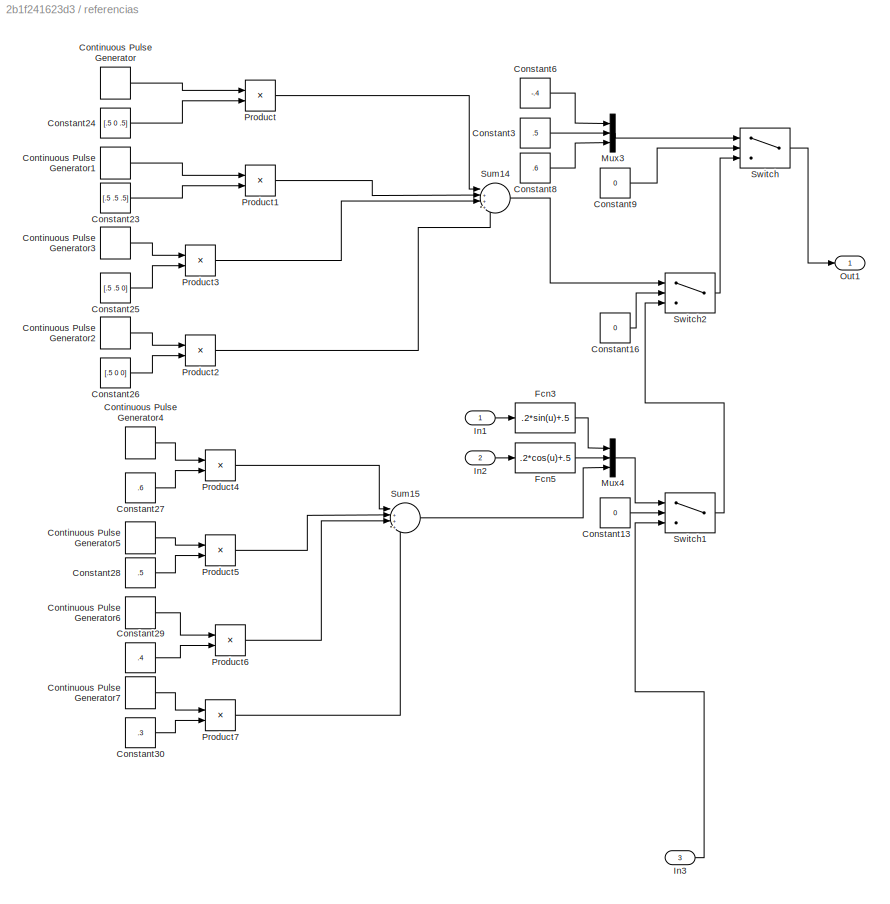
BLOCK [SubSystem] referencias
  Ports = [3, 1]
  RequestExecContextInheritance = off
BLOCK [Constant] referencias/Constant13
  Value = 0
BLOCK [Constant] referencias/Constant16
  Value = 0
BLOCK [Constant] referencias/Constant23
  Value = [.5 .5 .5]
BLOCK [Constant] referencias/Constant24
  Value = [.5 0 .5]
BLOCK [Constant] referencias/Constant25
  Value = [.5 .5 0]
BLOCK [Constant] referencias/Constant26
  Value = [.5 0 0]
BLOCK [Constant] referencias/Constant27
  Value = .6
BLOCK [Constant] referencias/Constant28
  Value = .5
BLOCK [Constant] referencias/Constant29
  Value = .4
BLOCK [Constant] referencias/Constant3
  Value = .5
BLOCK [Constant] referencias/Constant30
  Value = .3
BLOCK [Constant] referencias/Constant6
  Value = -.4
BLOCK [Constant] referencias/Constant8
  Value = .6
BLOCK [Constant] referencias/Constant9
  Value = 0
BLOCK [DiscretePulseGenerator] referencias/Continuous Pulse Generator
  Period = 4
  Ports = [0, 1]
  PulseType = Time based
  PulseWidth = 25
BLOCK [DiscretePulseGenerator] referencias/Continuous Pulse Generator1
  Period = 4
  PhaseDelay = 1
  Ports = [0, 1]
  PulseType = Time based
  PulseWidth = 25
BLOCK [DiscretePulseGenerator] referencias/Continuous Pulse Generator2
  Period = 4
  PhaseDelay = 3
  Ports = [0, 1]
  PulseType = Time based
  PulseWidth = 25
BLOCK [DiscretePulseGenerator] referencias/Continuous Pulse Generator3
  Period = 4
  PhaseDelay = 2
  Ports = [0, 1]
  PulseType = Time based
  PulseWidth = 25
BLOCK [DiscretePulseGenerator] referencias/Continuous Pulse Generator4
  Period = 16
  Ports = [0, 1]
  PulseType = Time based
  PulseWidth = 25
BLOCK [DiscretePulseGenerator] referencias/Continuous Pulse Generator5
  Period = 16
  PhaseDelay = 4
  Ports = [0, 1]
  PulseType = Time based
  PulseWidth = 25
BLOCK [DiscretePulseGenerator] referencias/Continuous Pulse Generator6
  Period = 16
  PhaseDelay = 8
  Ports = [0, 1]
  PulseType = Time based
  PulseWidth = 25
BLOCK [DiscretePulseGenerator] referencias/Continuous Pulse Generator7
  Period = 16
  PhaseDelay = 12
  Ports = [0, 1]
  PulseType = Time based
  PulseWidth = 25
BLOCK [Fcn] referencias/Fcn3
  Expr = .2*sin(u)+.5
BLOCK [Fcn] referencias/Fcn5
  Expr = .2*cos(u)+.5
BLOCK [Inport] referencias/In1
  IconDisplay = Port number
BLOCK [Inport] referencias/In2
  IconDisplay = Port number
  Port = 2
BLOCK [Inport] referencias/In3
  IconDisplay = Port number
  Port = 3
BLOCK [Mux] referencias/Mux3
  DisplayOption = bar
  Inputs = 3
  Ports = [3, 1]
BLOCK [Mux] referencias/Mux4
  DisplayOption = bar
  Inputs = 3
  Ports = [3, 1]
BLOCK [Outport] referencias/Out1
  IconDisplay = Port number
BLOCK [Product] referencias/Product
  InputSameDT = off
  OutDataTypeStr = Inherit: Inherit via internal rule
  Ports = [2, 1]
  RndMeth = Floor
  SaturateOnIntegerOverflow = off
BLOCK [Product] referencias/Product1
  InputSameDT = off
  OutDataTypeStr = Inherit: Inherit via internal rule
  Ports = [2, 1]
  RndMeth = Floor
  SaturateOnIntegerOverflow = off
BLOCK [Product] referencias/Product2
  InputSameDT = off
  OutDataTypeStr = Inherit: Inherit via internal rule
  Ports = [2, 1]
  RndMeth = Floor
  SaturateOnIntegerOverflow = off
BLOCK [Product] referencias/Product3
  InputSameDT = off
  OutDataTypeStr = Inherit: Inherit via internal rule
  Ports = [2, 1]
  RndMeth = Floor
  SaturateOnIntegerOverflow = off
BLOCK [Product] referencias/Product4
  InputSameDT = off
  OutDataTypeStr = Inherit: Inherit via internal rule
  Ports = [2, 1]
  RndMeth = Floor
  SaturateOnIntegerOverflow = off
BLOCK [Product] referencias/Product5
  InputSameDT = off
  OutDataTypeStr = Inherit: Inherit via internal rule
  Ports = [2, 1]
  RndMeth = Floor
  SaturateOnIntegerOverflow = off
BLOCK [Product] referencias/Product6
  InputSameDT = off
  OutDataTypeStr = Inherit: Inherit via internal rule
  Ports = [2, 1]
  RndMeth = Floor
  SaturateOnIntegerOverflow = off
BLOCK [Product] referencias/Product7
  InputSameDT = off
  OutDataTypeStr = Inherit: Inherit via internal rule
  Ports = [2, 1]
  RndMeth = Floor
  SaturateOnIntegerOverflow = off
BLOCK [Sum] referencias/Sum14
  IconShape = round
  InputSameDT = off
  Inputs = |++++
  OutDataTypeStr = Inherit: Inherit via internal rule
  Ports = [4, 1]
  SaturateOnIntegerOverflow = off
BLOCK [Sum] referencias/Sum15
  IconShape = round
  InputSameDT = off
  Inputs = |++++
  OutDataTypeStr = Inherit: Inherit via internal rule
  Ports = [4, 1]
  SaturateOnIntegerOverflow = off
BLOCK [Switch] referencias/Switch
  Criteria = u2 > Threshold
  InputSameDT = off
  SaturateOnIntegerOverflow = off
BLOCK [Switch] referencias/Switch1
  Criteria = u2 > Threshold
  InputSameDT = off
  SaturateOnIntegerOverflow = off
BLOCK [Switch] referencias/Switch2
  Criteria = u2 > Threshold
  InputSameDT = off
  SaturateOnIntegerOverflow = off
NET Clock:1 -> Fcn6:1, Fcn7:1, Fcn8:1, MATLAB Function:4, referencias:1, referencias:2
NET Constant12:1 -> Sum12:1, Sum5:1
NET Constant14:1 -> Sum13:1, Sum6:1
NET Constant1:1 -> Sum7:1, Sum:1
NET Constant2:1 -> Sum1:1, Sum8:1
NET Constant4:1 -> Sum11:1, Sum4:1
NET Constant5:1 -> Sum2:1, Sum9:1
NET Constant7:1 -> Sum10:1, Sum3:1
NET Demux1:1 -> Integrator1:1, motores1:1
LINE Demux1:2 -> Integrator2:1
LINE Demux:1 -> Sum:2
LINE Demux:2 -> Sum1:2
LINE Demux:3 -> Sum2:2
LINE Demux:4 -> Sum3:2
LINE Demux:5 -> Sum4:2
LINE Demux:6 -> Sum5:2
LINE Demux:7 -> Sum6:2
LINE Derivative2:1 -> MATLAB Function:3
LINE Fcn6:1 -> Mux5:1
LINE Fcn7:1 -> Mux5:2
LINE Fcn8:1 -> Mux5:3
LINE Integrator1:1 -> Scope4:2
LINE Integrator2:1 -> Mux2:1
LINE MATLAB Function:1 -> Demux1:1
NET Mux1:1 -> MATLAB Function:1, Scope:1
LINE Mux2:1 -> Scope2:1
LINE Mux5:1 -> referencias:3
LINE PS-Simulink Converter1:1 -> Sum8:2
LINE PS-Simulink Converter2:1 -> Sum9:2
LINE PS-Simulink Converter3:1 -> Sum10:2
LINE PS-Simulink Converter4:1 -> Sum11:2
LINE PS-Simulink Converter5:1 -> Sum12:2
LINE PS-Simulink Converter6:1 -> Sum13:2
LINE PS-Simulink Converter:1 -> Sum7:2
LINE Sum10:1 -> Mux1:4
LINE Sum11:1 -> Mux1:5
LINE Sum12:1 -> Mux1:6
LINE Sum13:1 -> Mux1:7
LINE Sum1:1 -> Simulink-PS Converter2:1
LINE Sum2:1 -> Simulink-PS Converter3:1
LINE Sum3:1 -> Simulink-PS Converter4:1
LINE Sum4:1 -> Simulink-PS Converter5:1
LINE Sum5:1 -> Simulink-PS Converter6:1
LINE Sum6:1 -> Simulink-PS Converter7:1
LINE Sum7:1 -> Mux1:1
LINE Sum8:1 -> Mux1:2
LINE Sum9:1 -> Mux1:3
LINE Sum:1 -> Simulink-PS Converter1:1
LINE ganancias/Constant10:1 -> ganancias/Vector Concatenate:3
LINE ganancias/Constant11:1 -> ganancias/Vector Concatenate:2
LINE ganancias/Constant15:1 -> ganancias/Vector Concatenate:4
LINE ganancias/Constant17:1 -> ganancias/Vector Concatenate:5
LINE ganancias/Constant18:1 -> ganancias/Vector Concatenate:6
LINE ganancias/Constant19:1 -> ganancias/Vector Concatenate:7
LINE ganancias/Constant:1 -> ganancias/Vector Concatenate:1
LINE ganancias/Vector Concatenate:1 -> ganancias/Out1:1
LINE ganancias:1 -> motores1:2
LINE motores1/Demux10:1 -> motores1/MATLAB Function15:2
LINE motores1/Demux10:2 -> motores1/MATLAB Function13:2
LINE motores1/Demux10:3 -> motores1/MATLAB Function11:2
LINE motores1/Demux10:4 -> motores1/MATLAB Function6:2
LINE motores1/Demux10:5 -> motores1/MATLAB Function4:2
LINE motores1/Demux10:6 -> motores1/MATLAB Function2:2
LINE motores1/Demux10:7 -> motores1/MATLAB Function8:2
LINE motores1/Demux1:1 -> motores1/MATLAB Function10:4
LINE motores1/Demux1:2 -> motores1/MATLAB Function1:4
LINE motores1/Demux1:3 -> motores1/MATLAB Function3:4
LINE motores1/Demux1:4 -> motores1/MATLAB Function5:4
LINE motores1/Demux1:5 -> motores1/MATLAB Function7:4
LINE motores1/Demux1:6 -> motores1/MATLAB Function12:4
LINE motores1/Demux1:7 -> motores1/MATLAB Function14:4
LINE motores1/Demux2:1 -> motores1/MATLAB Function10:5
LINE motores1/Demux2:2 -> motores1/MATLAB Function1:5
LINE motores1/Demux2:3 -> motores1/MATLAB Function3:5
LINE motores1/Demux2:4 -> motores1/MATLAB Function5:5
LINE motores1/Demux2:5 -> motores1/MATLAB Function7:5
LINE motores1/Demux2:6 -> motores1/MATLAB Function12:5
LINE motores1/Demux2:7 -> motores1/MATLAB Function14:5
LINE motores1/Demux3:1 -> motores1/MATLAB Function10:6
LINE motores1/Demux3:2 -> motores1/MATLAB Function1:6
LINE motores1/Demux3:3 -> motores1/MATLAB Function3:6
LINE motores1/Demux3:4 -> motores1/MATLAB Function5:6
LINE motores1/Demux3:5 -> motores1/MATLAB Function7:6
LINE motores1/Demux3:6 -> motores1/MATLAB Function12:6
LINE motores1/Demux3:7 -> motores1/MATLAB Function14:6
LINE motores1/Demux4:1 -> motores1/Mux:7
LINE motores1/Demux4:2 -> motores1/Mux1:7
LINE motores1/Demux5:1 -> motores1/Mux:2
LINE motores1/Demux5:2 -> motores1/Mux1:2
LINE motores1/Demux6:1 -> motores1/Mux:3
LINE motores1/Demux6:2 -> motores1/Mux1:3
LINE motores1/Demux7:1 -> motores1/Mux:4
LINE motores1/Demux7:2 -> motores1/Mux1:4
LINE motores1/Demux8:1 -> motores1/Mux:5
LINE motores1/Demux8:2 -> motores1/Mux1:5
LINE motores1/Demux9:1 -> motores1/Mux:6
LINE motores1/Demux9:2 -> motores1/Mux1:6
LINE motores1/Demux:1 -> motores1/Mux:1
LINE motores1/Demux:2 -> motores1/Mux1:1
LINE motores1/Derivative10:1 -> motores1/MATLAB Function14:2
LINE motores1/Derivative1:1 -> motores1/Demux2:1
LINE motores1/Derivative2:1 -> motores1/MATLAB Function9:4
LINE motores1/Derivative3:1 -> motores1/MATLAB Function9:3
LINE motores1/Derivative4:1 -> motores1/MATLAB Function10:2
LINE motores1/Derivative5:1 -> motores1/MATLAB Function1:2
LINE motores1/Derivative6:1 -> motores1/MATLAB Function3:2
LINE motores1/Derivative7:1 -> motores1/MATLAB Function5:2
LINE motores1/Derivative8:1 -> motores1/MATLAB Function7:2
LINE motores1/Derivative9:1 -> motores1/MATLAB Function12:2
NET motores1/In1:1 -> motores1/Demux1:1, motores1/Derivative1:1
LINE motores1/In2:1 -> motores1/Demux3:1
NET motores1/Integrator10:1 -> motores1/Demux:1, motores1/MATLAB Function8:3
LINE motores1/Integrator11:1 -> motores1/MATLAB Function7:3
NET motores1/Integrator12:1 -> motores1/Demux9:1, motores1/MATLAB Function13:3
LINE motores1/Integrator13:1 -> motores1/MATLAB Function12:3
NET motores1/Integrator14:1 -> motores1/Demux4:1, motores1/MATLAB Function15:3
LINE motores1/Integrator15:1 -> motores1/MATLAB Function14:3
NET motores1/Integrator1:1 -> motores1/Demux5:1, motores1/MATLAB Function2:3
LINE motores1/Integrator2:1 -> motores1/MATLAB Function1:3
NET motores1/Integrator3:1 -> motores1/Demux6:1, motores1/MATLAB Function4:3
LINE motores1/Integrator4:1 -> motores1/MATLAB Function3:3
NET motores1/Integrator5:1 -> motores1/Demux7:1, motores1/MATLAB Function6:3
LINE motores1/Integrator6:1 -> motores1/MATLAB Function5:3
NET motores1/Integrator7:1 -> motores1/Demux8:1, motores1/MATLAB Function11:3
NET motores1/Integrator8:1 -> motores1/MATLAB Function9:1, motores1/Out2:1
LINE motores1/Integrator9:1 -> motores1/MATLAB Function10:3
LINE motores1/MATLAB Function10:1 -> motores1/Integrator9:1
LINE motores1/MATLAB Function10:2 -> motores1/Memory:1
LINE motores1/MATLAB Function11:1 -> motores1/Integrator7:1
NET motores1/MATLAB Function11:2 -> motores1/Derivative8:1, motores1/MATLAB Function7:1
LINE motores1/MATLAB Function12:1 -> motores1/Integrator13:1
LINE motores1/MATLAB Function12:2 -> motores1/Memory5:1
LINE motores1/MATLAB Function13:1 -> motores1/Integrator12:1
NET motores1/MATLAB Function13:2 -> motores1/Derivative9:1, motores1/MATLAB Function12:1
LINE motores1/MATLAB Function14:1 -> motores1/Integrator15:1
LINE motores1/MATLAB Function14:2 -> motores1/Memory6:1
LINE motores1/MATLAB Function15:1 -> motores1/Integrator14:1
NET motores1/MATLAB Function15:2 -> motores1/Derivative10:1, motores1/MATLAB Function14:1
LINE motores1/MATLAB Function1:1 -> motores1/Integrator2:1
LINE motores1/MATLAB Function1:2 -> motores1/Memory1:1
LINE motores1/MATLAB Function2:1 -> motores1/Integrator1:1
NET motores1/MATLAB Function2:2 -> motores1/Derivative5:1, motores1/MATLAB Function1:1
LINE motores1/MATLAB Function3:1 -> motores1/Integrator4:1
LINE motores1/MATLAB Function3:2 -> motores1/Memory2:1
LINE motores1/MATLAB Function4:1 -> motores1/Integrator3:1
NET motores1/MATLAB Function4:2 -> motores1/Derivative6:1, motores1/MATLAB Function3:1
LINE motores1/MATLAB Function5:1 -> motores1/Integrator6:1
LINE motores1/MATLAB Function5:2 -> motores1/Memory3:1
LINE motores1/MATLAB Function6:1 -> motores1/Integrator5:1
NET motores1/MATLAB Function6:2 -> motores1/Derivative7:1, motores1/MATLAB Function5:1
LINE motores1/MATLAB Function7:1 -> motores1/Integrator11:1
LINE motores1/MATLAB Function7:2 -> motores1/Memory4:1
LINE motores1/MATLAB Function8:1 -> motores1/Integrator10:1
NET motores1/MATLAB Function8:2 -> motores1/Derivative4:1, motores1/MATLAB Function10:1
LINE motores1/MATLAB Function9:1 -> motores1/Derivative2:1
NET motores1/MATLAB Function9:2 -> motores1/Demux10:1, motores1/Scope:1
NET motores1/Memory1:1 -> motores1/MATLAB Function2:1, motores1/Mux2:2
NET motores1/Memory2:1 -> motores1/MATLAB Function4:1, motores1/Mux2:3
NET motores1/Memory3:1 -> motores1/MATLAB Function6:1, motores1/Mux2:4
NET motores1/Memory4:1 -> motores1/MATLAB Function11:1, motores1/Mux2:5
NET motores1/Memory5:1 -> motores1/MATLAB Function13:1, motores1/Mux2:6
NET motores1/Memory6:1 -> motores1/MATLAB Function15:1, motores1/Mux2:7
NET motores1/Memory:1 -> motores1/MATLAB Function8:1, motores1/Mux2:1
NET motores1/Mux1:1 -> motores1/Derivative3:1, motores1/Integrator8:1, motores1/MATLAB Function9:2
LINE motores1/Mux2:1 -> motores1/Out3:1
LINE motores1/Mux:1 -> motores1/Out1:1
LINE motores1:1 -> Scope3:1
NET motores1:2 -> Demux:1, Scope1:1, Scope4:1
LINE motores1:3 -> Scope5:1
LINE referencias/Constant13:1 -> referencias/Switch1:2
LINE referencias/Constant16:1 -> referencias/Switch2:2
LINE referencias/Constant23:1 -> referencias/Product1:2
LINE referencias/Constant24:1 -> referencias/Product:2
LINE referencias/Constant25:1 -> referencias/Product3:2
LINE referencias/Constant26:1 -> referencias/Product2:2
LINE referencias/Constant27:1 -> referencias/Product4:2
LINE referencias/Constant28:1 -> referencias/Product5:2
LINE referencias/Constant29:1 -> referencias/Product6:2
LINE referencias/Constant30:1 -> referencias/Product7:2
LINE referencias/Constant3:1 -> referencias/Mux3:2
LINE referencias/Constant6:1 -> referencias/Mux3:1
LINE referencias/Constant8:1 -> referencias/Mux3:3
LINE referencias/Constant9:1 -> referencias/Switch:2
LINE referencias/Continuous Pulse Generator1:1 -> referencias/Product1:1
LINE referencias/Continuous Pulse Generator2:1 -> referencias/Product2:1
LINE referencias/Continuous Pulse Generator3:1 -> referencias/Product3:1
LINE referencias/Continuous Pulse Generator4:1 -> referencias/Product4:1
LINE referencias/Continuous Pulse Generator5:1 -> referencias/Product5:1
LINE referencias/Continuous Pulse Generator6:1 -> referencias/Product6:1
LINE referencias/Continuous Pulse Generator7:1 -> referencias/Product7:1
LINE referencias/Continuous Pulse Generator:1 -> referencias/Product:1
LINE referencias/Fcn3:1 -> referencias/Mux4:1
LINE referencias/Fcn5:1 -> referencias/Mux4:2
LINE referencias/In1:1 -> referencias/Fcn3:1
LINE referencias/In2:1 -> referencias/Fcn5:1
LINE referencias/In3:1 -> referencias/Switch1:3
LINE referencias/Mux3:1 -> referencias/Switch:1
LINE referencias/Mux4:1 -> referencias/Switch1:1
LINE referencias/Product1:1 -> referencias/Sum14:2
LINE referencias/Product2:1 -> referencias/Sum14:4
LINE referencias/Product3:1 -> referencias/Sum14:3
LINE referencias/Product4:1 -> referencias/Sum15:1
LINE referencias/Product5:1 -> referencias/Sum15:2
LINE referencias/Product6:1 -> referencias/Sum15:3
LINE referencias/Product7:1 -> referencias/Sum15:4
LINE referencias/Product:1 -> referencias/Sum14:1
LINE referencias/Sum14:1 -> referencias/Switch2:1
LINE referencias/Sum15:1 -> referencias/Mux4:3
LINE referencias/Switch1:1 -> referencias/Switch2:3
LINE referencias/Switch2:1 -> referencias/Switch:3
LINE referencias/Switch:1 -> referencias/Out1:1
NET referencias:1 -> Derivative2:1, MATLAB Function:2, Mux2:2
PLINE ARM6_NEW_2_RIGID/F1:RConn1 -- ARM6_NEW_2_RIGID/Transform1:RConn1
PLINE ARM6_NEW_2_RIGID/F:RConn1 -- ARM6_NEW_2_RIGID/Transform:RConn1
PNET net1: ARM6_NEW_2_RIGID/ReferenceFrame:RConn1 -- ARM6_NEW_2_RIGID/Solid:RConn1 -- ARM6_NEW_2_RIGID/Transform1:LConn1 -- ARM6_NEW_2_RIGID/Transform:LConn1
PLINE ARM6_NEW_2_RIGID:LConn1 -- Revolute5:RConn1
PLINE ARM6_NEW_2_RIGID:RConn1 -- Revolute6:LConn1
PNET net2: Arm0_2_RIGID/F1:RConn1 -- Arm0_2_RIGID/ReferenceFrame:RConn1 -- Arm0_2_RIGID/Solid:RConn1 -- Arm0_2_RIGID/Transform:LConn1
PLINE Arm0_2_RIGID/F:RConn1 -- Arm0_2_RIGID/Transform:RConn1
PLINE Arm0_2_RIGID:LConn1 -- Transform:RConn1
PLINE Arm0_2_RIGID:RConn1 -- Revolute:LConn1
PLINE Arm1_2_RIGID/F1:RConn1 -- Arm1_2_RIGID/Transform1:RConn1
PLINE Arm1_2_RIGID/F:RConn1 -- Arm1_2_RIGID/Transform:RConn1
PNET net3: Arm1_2_RIGID/ReferenceFrame:RConn1 -- Arm1_2_RIGID/Solid:RConn1 -- Arm1_2_RIGID/Transform1:LConn1 -- Arm1_2_RIGID/Transform:LConn1
PLINE Arm1_2_RIGID:LConn1 -- Revolute:RConn1
PLINE Arm1_2_RIGID:RConn1 -- Revolute1:LConn1
PLINE Arm2_2_RIGID/F1:RConn1 -- Arm2_2_RIGID/Transform1:RConn1
PLINE Arm2_2_RIGID/F:RConn1 -- Arm2_2_RIGID/Transform:RConn1
PNET net4: Arm2_2_RIGID/ReferenceFrame:RConn1 -- Arm2_2_RIGID/Solid:RConn1 -- Arm2_2_RIGID/Transform1:LConn1 -- Arm2_2_RIGID/Transform:LConn1
PLINE Arm2_2_RIGID:LConn1 -- Revolute1:RConn1
PLINE Arm2_2_RIGID:RConn1 -- Revolute2:LConn1
PLINE Arm3_2_RIGID/F1:RConn1 -- Arm3_2_RIGID/Transform1:RConn1
PLINE Arm3_2_RIGID/F:RConn1 -- Arm3_2_RIGID/Transform:RConn1
PNET net5: Arm3_2_RIGID/ReferenceFrame:RConn1 -- Arm3_2_RIGID/Solid:RConn1 -- Arm3_2_RIGID/Transform1:LConn1 -- Arm3_2_RIGID/Transform:LConn1
PLINE Arm3_2_RIGID:LConn1 -- Revolute2:RConn1
PLINE Arm3_2_RIGID:RConn1 -- Revolute3:LConn1
PLINE Arm4_2_RIGID/F1:RConn1 -- Arm4_2_RIGID/Transform1:RConn1
PLINE Arm4_2_RIGID/F:RConn1 -- Arm4_2_RIGID/Transform:RConn1
PNET net6: Arm4_2_RIGID/ReferenceFrame:RConn1 -- Arm4_2_RIGID/Solid:RConn1 -- Arm4_2_RIGID/Transform1:LConn1 -- Arm4_2_RIGID/Transform:LConn1
PLINE Arm4_2_RIGID:LConn1 -- Revolute3:RConn1
PLINE Arm4_2_RIGID:RConn1 -- Revolute4:LConn1
PLINE Arm5_2_RIGID/F1:RConn1 -- Arm5_2_RIGID/Transform1:RConn1
PLINE Arm5_2_RIGID/F:RConn1 -- Arm5_2_RIGID/Transform:RConn1
PNET net7: Arm5_2_RIGID/ReferenceFrame:RConn1 -- Arm5_2_RIGID/Solid:RConn1 -- Arm5_2_RIGID/Transform1:LConn1 -- Arm5_2_RIGID/Transform:LConn1
PLINE Arm5_2_RIGID:LConn1 -- Revolute4:RConn1
PLINE Arm5_2_RIGID:RConn1 -- Revolute5:LConn1
PLINE Arm6Part2_2_RIGID/F:RConn1 -- Arm6Part2_2_RIGID/Transform:RConn1
PNET net8: Arm6Part2_2_RIGID/ReferenceFrame:RConn1 -- Arm6Part2_2_RIGID/Solid:RConn1 -- Arm6Part2_2_RIGID/Transform:LConn1
PLINE Arm6Part2_2_RIGID:LConn1 -- Revolute6:RConn1
PNET net9: MechanismConfiguration:RConn1 -- Solver Configuration:RConn1 -- Transform:LConn1 -- World:RConn1
PLINE PS-Simulink Converter1:LConn1 -- Revolute1:RConn2
PLINE PS-Simulink Converter2:LConn1 -- Revolute2:RConn2
PLINE PS-Simulink Converter3:LConn1 -- Revolute3:RConn2
PLINE PS-Simulink Converter4:LConn1 -- Revolute4:RConn2
PLINE PS-Simulink Converter5:LConn1 -- Revolute5:RConn2
PLINE PS-Simulink Converter6:LConn1 -- Revolute6:RConn2
PLINE PS-Simulink Converter:LConn1 -- Revolute:RConn2
PLINE Revolute1:LConn2 -- Simulink-PS Converter2:RConn1
PLINE Revolute2:LConn2 -- Simulink-PS Converter3:RConn1
PLINE Revolute3:LConn2 -- Simulink-PS Converter4:RConn1
PLINE Revolute4:LConn2 -- Simulink-PS Converter5:RConn1
PLINE Revolute5:LConn2 -- Simulink-PS Converter6:RConn1
PLINE Revolute6:LConn2 -- Simulink-PS Converter7:RConn1
PLINE Revolute:LConn2 -- Simulink-PS Converter1:RConn1
note: NET lines group one-source signal fan-out (src -> all destinations, sorted); 1:1 wires keep LINE; PNET lines group multi-terminal physical nets as a canonical sorted terminal list (undirected conserving connections); 2-terminal nets keep the pairwise PLINE form
CHART MATLAB Function states=1 transitions=1
  STATE_LABEL 'eML_blk_kernel()'
  STATE_LABEL "SCRIPT:\nfunction dX = simulink_jacobiano(x, yref,dYref,t)\n\nKe = -5;\n\n%Parametros del sistema\nd = [0.2703 0 0.3644 0 0.3743 0 0.2295]; %metros\na = [0.069 0 0.069 0 0.01 0 0]; %metros\nalpha = [-pi/2 pi/2 -pi/2 pi/2 -pi/2 pi/2 0]; %radianes\n\nT = denavit_hartenberg(x(1:7),a,alpha,d,0,7);\nJ = jacobian(T);\nJv = J(4:6,:);\n\ne = yref - T{1,7}(1:3,4);\nU = pinv(Jv)*(dYref - Ke*e);\n%ODE's\ndX = [U;Jv*U];"
CHART motores1/MATLAB Function1 states=1 transitions=1
  STATE_LABEL 'eML_blk_kernel()'
  STATE_LABEL 'SCRIPT:\nfunction [E,U] = PID(Y,dY,iE,Yref,dYref,k)\n\nE = Yref - Y;\ndE = dYref - dY;\n\nU = k(1)*E + k(2)*iE + k(3)*dE;'
CHART motores1/MATLAB Function10 states=1 transitions=1
  STATE_LABEL 'eML_blk_kernel()'
  STATE_LABEL 'SCRIPT:\nfunction [E,U] = PID(Y,dY,iE,Yref,dYref,k)\n\nE = Yref - Y;\ndE = dYref - dY;\n\nU = k(1)*E + k(2)*iE + k(3)*dE;'
CHART motores1/MATLAB Function11 states=1 transitions=1
  STATE_LABEL 'eML_blk_kernel()'
  STATE_LABEL 'SCRIPT:\nfunction [dX,Y]= motor_modelo(U,D,X)\n\n%MATRICES DEL MOTOR\nRa = 11.24;\nLa = 2.713e-3;\nKb = 14.87e-3;\nKt = Kb;\nbm = 2.01e-6;\nJm = 2779.56e-9;\n\nA = [-Ra/La -Kb/La;Kt/Jm -bm/Jm];\nB = [1/La;0];\nC = [0 1];\n\n%CONTROLADOR PID\ndX = [A*X + B*U];\nY = [C*X + D*U];'  <repeated x7 — deduplicated; at blocks: MATLAB Function11, MATLAB Function13, MATLAB Function15, MATLAB Function2, MATLAB Function4, MATLAB Function6, MATLAB Function8>
CHART motores1/MATLAB Function12 states=1 transitions=1
  STATE_LABEL 'eML_blk_kernel()'
  STATE_LABEL 'SCRIPT:\nfunction [E,U] = PID(Y,dY,iE,Yref,dYref,k)\n\nE = Yref - Y;\ndE = dYref - dY;\n\nU = k(1)*E + k(2)*iE + k(3)*dE;'
CHART motores1/MATLAB Function13 states=1 transitions=1
  STATE_LABEL 'eML_blk_kernel()'
CHART motores1/MATLAB Function14 states=1 transitions=1
  STATE_LABEL 'eML_blk_kernel()'
  STATE_LABEL 'SCRIPT:\nfunction [E,U] = PID(Y,dY,iE,Yref,dYref,k)\n\nE = Yref - Y;\ndE = dYref - dY;\n\nU = k(1)*E + k(2)*iE + k(3)*dE;'
CHART motores1/MATLAB Function15 states=1 transitions=1
  STATE_LABEL 'eML_blk_kernel()'
CHART motores1/MATLAB Function2 states=1 transitions=1
  STATE_LABEL 'eML_blk_kernel()'
CHART motores1/MATLAB Function3 states=1 transitions=1
  STATE_LABEL 'eML_blk_kernel()'
  STATE_LABEL 'SCRIPT:\nfunction [E,U] = PID(Y,dY,iE,Yref,dYref,k)\n\nE = Yref - Y;\ndE = dYref - dY;\n\nU = k(1)*E + k(2)*iE + k(3)*dE;'
CHART motores1/MATLAB Function4 states=1 transitions=1
  STATE_LABEL 'eML_blk_kernel()'
CHART motores1/MATLAB Function5 states=1 transitions=1
  STATE_LABEL 'eML_blk_kernel()'
  STATE_LABEL 'SCRIPT:\nfunction [E,U] = PID(Y,dY,iE,Yref,dYref,k)\n\nE = Yref - Y;\ndE = dYref - dY;\n\nU = k(1)*E + k(2)*iE + k(3)*dE;'
CHART motores1/MATLAB Function6 states=1 transitions=1
  STATE_LABEL 'eML_blk_kernel()'
CHART motores1/MATLAB Function7 states=1 transitions=1
  STATE_LABEL 'eML_blk_kernel()'
  STATE_LABEL 'SCRIPT:\nfunction [E,U] = PID(Y,dY,iE,Yref,dYref,k)\n\nE = Yref - Y;\ndE = dYref - dY;\n\nU = k(1)*E + k(2)*iE + k(3)*dE;'
CHART motores1/MATLAB Function8 states=1 transitions=1
  STATE_LABEL 'eML_blk_kernel()'
CHART motores1/MATLAB Function9 states=1 transitions=1
  STATE_LABEL 'eML_blk_kernel()'
  STATE_LABEL 'SCRIPT:\nfunction [w,torque] = fcn(q, dq, ddq, dw)\n\nd = [0.2703 0 0.3644 0 0.3743 0 0.2295]; %metros\na = [0.069 0 0.069 0 0.01 0 0]; %matros\nalpha = [-pi/2 pi/2 -pi/2 pi/2 -pi/2 pi/2 0]; %radianes\nm = [5.70044 3.22698 4.31272 2.07206 2.24665 1.60879 0.54218]; %kg\n\nxc = [-0.05117 0.00269 -0.07176 0.00159 -0.01168 0.00697 0.005137]; %metros\nyc = [0.07908 -0.00529 0.08149 -0.01117 0.13111 0.006 0.0009...<+3303ch>'
